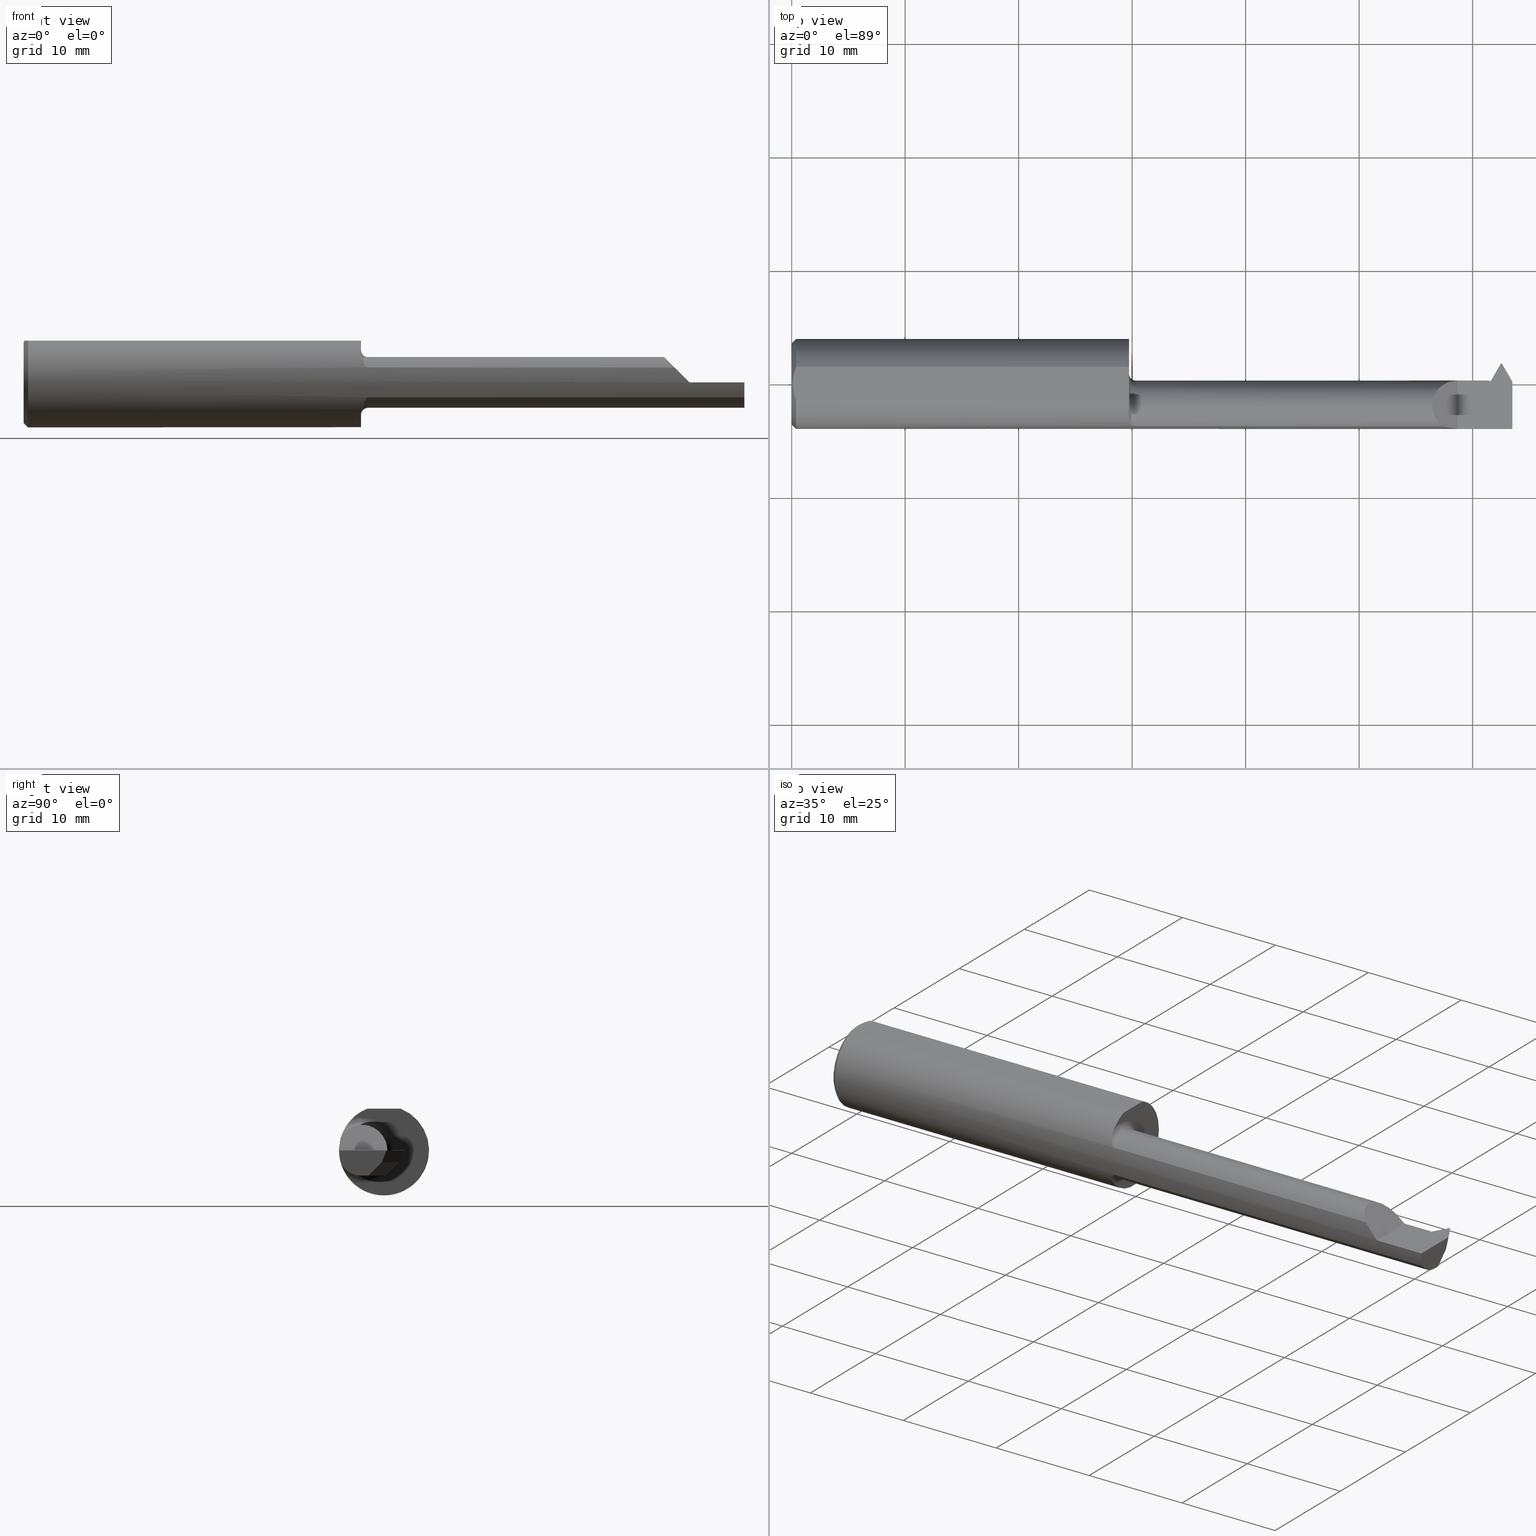
[diagram: canonical four-view strip — front | top / right | iso, engineering-drawing reading convention]
A machine part, canonical four-view strip (front | top / right | iso — engineering-drawing reading convention). The complete STEP part file that produces these views, byte-faithful:
ISO-10303-21;
HEADER;
FILE_DESCRIPTION (( 'STEP AP203' ),
    '1' );
FILE_NAME ('230298-TT2301250.STEP',
    '2025-04-22T23:18:01',
    ( '' ),
    ( '' ),
    'SwSTEP 2.0',
    'SolidWorks 2024',
    '' );
FILE_SCHEMA (( 'CONFIG_CONTROL_DESIGN' ));
ENDSEC;

DATA;
#1 =( CONVERSION_BASED_UNIT ( 'INCH', #687 ) LENGTH_UNIT ( ) NAMED_UNIT ( #109 ) );
#2 = CARTESIAN_POINT ( 'NONE',  ( 2.500000000000000000, -0.07609999999999991771, -0.08799999999999999489 ) ) ;
#3 = AXIS2_PLACEMENT_3D ( 'NONE', #340, #856, #488 ) ;
#4 = VECTOR ( 'NONE', #484, 39.37007874015748143 ) ;
#5 = ORIENTED_EDGE ( 'NONE', *, *, #567, .T. ) ;
#6 = CIRCLE ( 'NONE', #848, 0.1560999999999999888 ) ;
#7 = ORIENTED_EDGE ( 'NONE', *, *, #52, .T. ) ;
#8 = VERTEX_POINT ( 'NONE', #541 ) ;
#9 = CARTESIAN_POINT ( 'NONE',  ( 1.170000000000000151, 0.000000000000000000, 0.000000000000000000 ) ) ;
#10 = ADVANCED_BREP_SHAPE_REPRESENTATION ( '230298-TT2301250', ( #961, #721 ), #24 ) ;
#11 = CARTESIAN_POINT ( 'NONE',  ( 2.165000000000000480, 0.1749999999999999889, 0.1450999999999999512 ) ) ;
#12 = ORIENTED_EDGE ( 'NONE', *, *, #33, .T. ) ;
#13 = ORIENTED_EDGE ( 'NONE', *, *, #266, .T. ) ;
#14 = EDGE_CURVE ( 'NONE', #8, #159, #742, .T. ) ;
#15 = FACE_OUTER_BOUND ( 'NONE', #171, .T. ) ;
#16 = APPROVAL_STATUS ( 'not_yet_approved' ) ;
#17 = CARTESIAN_POINT ( 'NONE',  ( 1.179094334707839531, -0.1408376601564307051, -0.06752940149352165689 ) ) ;
#18 = VERTEX_POINT ( 'NONE', #846 ) ;
#19 = CC_DESIGN_PERSON_AND_ORGANIZATION_ASSIGNMENT ( #334, #631, ( #392 ) ) ;
#20 = LINE ( 'NONE', #307, #208 ) ;
#21 = APPROVAL_ROLE ( '' ) ;
#22 = LINE ( 'NONE', #332, #874 ) ;
#23 = VECTOR ( 'NONE', #574, 39.37007874015748854 ) ;
#24 =( GEOMETRIC_REPRESENTATION_CONTEXT ( 3 ) GLOBAL_UNCERTAINTY_ASSIGNED_CONTEXT ( ( #913 ) ) GLOBAL_UNIT_ASSIGNED_CONTEXT ( ( #1, #329, #324 ) ) REPRESENTATION_CONTEXT ( 'NONE', 'WORKASPACE' ) );
#25 = DIRECTION ( 'NONE',  ( -0.2488382054433659063, -0.6848647850166172946, -0.6848647850166247331 ) ) ;
#26 = DATE_TIME_ROLE ( 'creation_date' ) ;
#27 = CARTESIAN_POINT ( 'NONE',  ( 1.172184834623028138, -0.1292572780652835041, -0.08772123080144228480 ) ) ;
#28 = EDGE_CURVE ( 'NONE', #18, #610, #926, .T. ) ;
#29 = CARTESIAN_POINT ( 'NONE',  ( 1.172196435196732889, -0.1292912702572164008, 0.08767123446451229041 ) ) ;
#30 = DIRECTION ( 'NONE',  ( 4.327630860564885465E-15, -0.7071067811865436870, -0.7071067811865513475 ) ) ;
#31 = COORDINATED_UNIVERSAL_TIME_OFFSET ( 8, 0, .BEHIND. ) ;
#32 = CARTESIAN_POINT ( 'NONE',  ( 2.412128569999999694, 0.003495971334868634619, -0.1879385241571825405 ) ) ;
#33 = EDGE_CURVE ( 'NONE', #158, #672, #191, .T. ) ;
#34 = DIRECTION ( 'NONE',  ( -0.000000000000000000, 1.000000000000000000, -0.000000000000000000 ) ) ;
#35 = LINE ( 'NONE', #644, #747 ) ;
#36 = B_SPLINE_CURVE_WITH_KNOTS ( 'NONE', 3,
 ( #932, #559, #241, #27, #777, #615, #17, #400, #318, #936, #335, #850, #632, #257 ),
 .UNSPECIFIED., .F., .F.,
 ( 4, 2, 2, 2, 2, 2, 4 ),
 ( 0.000000000000000000, 0.0004571115948190657011, 0.0009142231896381314022, 0.001371334784457197645, 0.001599890581866728057, 0.001714168480571489576, 0.001828446379276251529 ),
 .UNSPECIFIED. ) ;
#37 = CARTESIAN_POINT ( 'NONE',  ( 2.412128569999998362, 0.06098089297201422093, -0.03000000000000036318 ) ) ;
#38 = EDGE_CURVE ( 'NONE', #609, #834, #938, .T. ) ;
#39 = AXIS2_PLACEMENT_3D ( 'NONE', #486, #113, #798 ) ;
#40 = AXIS2_PLACEMENT_3D ( 'NONE', #280, #64, #436 ) ;
#41 = SHAPE_DEFINITION_REPRESENTATION ( #287, #10 ) ;
#42 = DIRECTION ( 'NONE',  ( -1.000000000000000000, -0.000000000000000000, -0.000000000000000000 ) ) ;
#43 = ORIENTED_EDGE ( 'NONE', *, *, #247, .F. ) ;
#44 = FACE_OUTER_BOUND ( 'NONE', #211, .T. ) ;
#45 = VERTEX_POINT ( 'NONE', #946 ) ;
#46 = PERSON_AND_ORGANIZATION ( #945, #311 ) ;
#47 = DIRECTION ( 'NONE',  ( 0.000000000000000000, -1.000000000000000000, 1.665508886226709250E-16 ) ) ;
#48 = CARTESIAN_POINT ( 'NONE',  ( 0.000000000000000000, 0.000000000000000000, 0.000000000000000000 ) ) ;
#49 = EDGE_LOOP ( 'NONE', ( #685, #661, #215, #13, #881, #817 ) ) ;
#50 = FACE_OUTER_BOUND ( 'NONE', #646, .T. ) ;
#51 = AXIS2_PLACEMENT_3D ( 'NONE', #647, #110, #870 ) ;
#52 = EDGE_CURVE ( 'NONE', #234, #892, #336, .T. ) ;
#53 = DIRECTION ( 'NONE',  ( -0.000000000000000000, 1.000000000000000000, -1.665508886226709250E-16 ) ) ;
#54 = DIRECTION ( 'NONE',  ( -1.000000000000000000, -4.337237490962486732E-15, 0.000000000000000000 ) ) ;
#55 = CARTESIAN_POINT ( 'NONE',  ( 2.432412366617116461, -0.01878513696056283502, -0.06677579258062492362 ) ) ;
#56 = EDGE_CURVE ( 'NONE', #506, #326, #174, .T. ) ;
#57 = ORIENTED_EDGE ( 'NONE', *, *, #419, .T. ) ;
#58 = DIRECTION ( 'NONE',  ( -0.000000000000000000, 1.000000000000000000, -0.000000000000000000 ) ) ;
#59 = DIRECTION ( 'NONE',  ( 0.1822355254921478318, 0.000000000000000000, 0.9832549075639543945 ) ) ;
#60 = ORIENTED_EDGE ( 'NONE', *, *, #738, .F. ) ;
#61 = ORIENTED_EDGE ( 'NONE', *, *, #674, .F. ) ;
#62 = EDGE_CURVE ( 'NONE', #320, #422, #717, .T. ) ;
#63 = LINE ( 'NONE', #217, #769 ) ;
#64 = DIRECTION ( 'NONE',  ( -1.000000000000000000, -0.000000000000000000, -0.000000000000000000 ) ) ;
#65 = VECTOR ( 'NONE', #53, 39.37007874015748143 ) ;
#66 = AXIS2_PLACEMENT_3D ( 'NONE', #914, #539, #317 ) ;
#67 = ORIENTED_EDGE ( 'NONE', *, *, #910, .T. ) ;
#68 = ORIENTED_EDGE ( 'NONE', *, *, #254, .F. ) ;
#69 = ADVANCED_FACE ( 'NONE', ( #183 ), #255, .T. ) ;
#70 = CARTESIAN_POINT ( 'NONE',  ( 2.500000000000000000, -0.006579990772679033574, -0.04000000000000004247 ) ) ;
#71 = CARTESIAN_POINT ( 'NONE',  ( 2.429234505209546313, 0.002486438202738685752, -0.04000000000000004247 ) ) ;
#72 = CARTESIAN_POINT ( 'NONE',  ( 1.195000000000000062, -0.07609999999999990383, 0.000000000000000000 ) ) ;
#73 = ORIENTED_EDGE ( 'NONE', *, *, #156, .T. ) ;
#74 = ORIENTED_EDGE ( 'NONE', *, *, #808, .T. ) ;
#75 = ORIENTED_EDGE ( 'NONE', *, *, #283, .F. ) ;
#76 = CARTESIAN_POINT ( 'NONE',  ( 2.457232791724791809, 0.05098089297201464226, -0.04000000000000004247 ) ) ;
#77 = CARTESIAN_POINT ( 'NONE',  ( 1.170000000000000151, -0.07609999999999990383, 0.000000000000000000 ) ) ;
#78 = CARTESIAN_POINT ( 'NONE',  ( 2.429234505209546313, -0.03568306677792929676, -0.07816950498066803366 ) ) ;
#79 = VERTEX_POINT ( 'NONE', #787 ) ;
#80 = ORIENTED_EDGE ( 'NONE', *, *, #328, .T. ) ;
#81 = CARTESIAN_POINT ( 'NONE',  ( 1.191958798426077548, -0.1470959791559693364, 0.05225519572836446330 ) ) ;
#82 = CARTESIAN_POINT ( 'NONE',  ( 1.195000000000000062, -0.07609999999999988995, 0.1130000000000000032 ) ) ;
#83 = MECHANICAL_CONTEXT ( 'NONE', #167, 'mechanical' ) ;
#84 = CARTESIAN_POINT ( 'NONE',  ( 2.462521487620783933, 0.003433247864051238059, -0.1881108554769237440 ) ) ;
#85 = VECTOR ( 'NONE', #497, 39.37007874015748854 ) ;
#86 = EDGE_CURVE ( 'NONE', #506, #609, #888, .T. ) ;
#87 = TOROIDAL_SURFACE ( 'NONE', #640, 0.1130000000000000032, 0.02500000000000000139 ) ;
#88 = ORIENTED_EDGE ( 'NONE', *, *, #266, .F. ) ;
#89 = ORIENTED_EDGE ( 'NONE', *, *, #14, .T. ) ;
#90 = CARTESIAN_POINT ( 'NONE',  ( 1.195000000000000062, -0.07609999999999990383, 0.000000000000000000 ) ) ;
#91 = PERSON_AND_ORGANIZATION_ROLE ( 'creator' ) ;
#92 = DIRECTION ( 'NONE',  ( -0.09252987390807521084, 0.6193650116388675908, 0.7796314544655962298 ) ) ;
#93 = EDGE_CURVE ( 'NONE', #754, #320, #316, .T. ) ;
#94 = VERTEX_POINT ( 'NONE', #179 ) ;
#95 = DIRECTION ( 'NONE',  ( 1.000000000000000000, 0.000000000000000000, 0.000000000000000000 ) ) ;
#96 = APPROVAL_ROLE ( '' ) ;
#97 = CARTESIAN_POINT ( 'NONE',  ( 2.419954283310243426, 0.01190000000000008412, 0.000000000000000000 ) ) ;
#98 = ORIENTED_EDGE ( 'NONE', *, *, #920, .F. ) ;
#99 = DIRECTION ( 'NONE',  ( 0.000000000000000000, 0.000000000000000000, -1.000000000000000000 ) ) ;
#100 = EDGE_CURVE ( 'NONE', #546, #796, #462, .T. ) ;
#101 = PERSON_AND_ORGANIZATION ( #945, #311 ) ;
#102 = FACE_OUTER_BOUND ( 'NONE', #49, .T. ) ;
#103 = CARTESIAN_POINT ( 'NONE',  ( 2.434153716850806504, -0.03491348145713581153, -0.08061904056241102345 ) ) ;
#104 = CIRCLE ( 'NONE', #51, 0.1130000000000000032 ) ;
#105 = FACE_OUTER_BOUND ( 'NONE', #216, .T. ) ;
#106 = CARTESIAN_POINT ( 'NONE',  ( 2.310000000000000053, 0.000000000000000000, 0.000000000000000000 ) ) ;
#107 = CARTESIAN_POINT ( 'NONE',  ( 2.417409961610213376, 0.01190000000000008586, -0.01372793142950701900 ) ) ;
#108 = PLANE ( 'NONE',  #194 ) ;
#109 = DIMENSIONAL_EXPONENTS ( 1.000000000000000000, 0.000000000000000000, 0.000000000000000000, 0.000000000000000000, 0.000000000000000000, 0.000000000000000000, 0.000000000000000000 ) ;
#110 = DIRECTION ( 'NONE',  ( -1.000000000000000000, -0.000000000000000000, -0.000000000000000000 ) ) ;
#111 = EDGE_CURVE ( 'NONE', #965, #304, #878, .T. ) ;
#112 = DIRECTION ( 'NONE',  ( 1.000000000000000000, 0.000000000000000000, 0.000000000000000000 ) ) ;
#113 = DIRECTION ( 'NONE',  ( -1.000000000000000000, -0.000000000000000000, -0.000000000000000000 ) ) ;
#114 = DIRECTION ( 'NONE',  ( 0.7071067811865483499, 0.000000000000000000, -0.7071067811865466846 ) ) ;
#115 = VERTEX_POINT ( 'NONE', #795 ) ;
#116 = CIRCLE ( 'NONE', #330, 0.02500000000000000486 ) ;
#117 = LOCAL_TIME ( 16, 18, 1.000000000000000000, #854 ) ;
#118 = CARTESIAN_POINT ( 'NONE',  ( 2.222100000000000186, -0.02459722810174531579, 0.08800000000000000877 ) ) ;
#119 = FACE_OUTER_BOUND ( 'NONE', #237, .T. ) ;
#120 = CARTESIAN_POINT ( 'NONE',  ( 2.222100000000000186, -0.07609999999999990383, 0.08799999999999999489 ) ) ;
#121 = EDGE_LOOP ( 'NONE', ( #12, #974, #366, #877 ) ) ;
#122 = EDGE_CURVE ( 'NONE', #242, #393, #714, .T. ) ;
#123 = FACE_OUTER_BOUND ( 'NONE', #221, .T. ) ;
#124 = FACE_OUTER_BOUND ( 'NONE', #537, .T. ) ;
#125 = ORIENTED_EDGE ( 'NONE', *, *, #376, .F. ) ;
#126 = VECTOR ( 'NONE', #186, 39.37007874015748143 ) ;
#127 = AXIS2_PLACEMENT_3D ( 'NONE', #729, #573, #47 ) ;
#128 = CARTESIAN_POINT ( 'NONE',  ( 1.170000000000000151, -0.1142537450722733300, 0.1063639588251582974 ) ) ;
#129 = ADVANCED_FACE ( 'NONE', ( #262 ), #163, .T. ) ;
#130 = PLANE ( 'NONE',  #749 ) ;
#131 = LINE ( 'NONE', #804, #85 ) ;
#132 = ORIENTED_EDGE ( 'NONE', *, *, #540, .F. ) ;
#133 = LINE ( 'NONE', #598, #543 ) ;
#134 = ADVANCED_FACE ( 'NONE', ( #119 ), #789, .T. ) ;
#135 = ORIENTED_EDGE ( 'NONE', *, *, #863, .F. ) ;
#136 = EDGE_LOOP ( 'NONE', ( #901, #132, #293, #367, #74 ) ) ;
#137 = CARTESIAN_POINT ( 'NONE',  ( 2.437057709344923939, -2.395127504580135902, 0.3287498326531673731 ) ) ;
#138 = DIRECTION ( 'NONE',  ( 1.000000000000000000, 0.000000000000000000, 0.000000000000000000 ) ) ;
#139 = ORIENTED_EDGE ( 'NONE', *, *, #214, .F. ) ;
#140 = ORIENTED_EDGE ( 'NONE', *, *, #86, .F. ) ;
#141 = EDGE_CURVE ( 'NONE', #965, #362, #933, .T. ) ;
#142 = CARTESIAN_POINT ( 'NONE',  ( 2.310000000000000053, 0.01190000000000008412, -3.979970649922725226E-17 ) ) ;
#143 = DIRECTION ( 'NONE',  ( 1.000000000000000000, 0.000000000000000000, 0.000000000000000000 ) ) ;
#144 = CONICAL_SURFACE ( 'NONE', #639, 0.1560999999999999888, 0.7853981633974471688 ) ;
#145 = LOCAL_TIME ( 16, 18, 1.000000000000000000, #924 ) ;
#146 = EDGE_LOOP ( 'NONE', ( #538, #517, #230, #442 ) ) ;
#147 = EDGE_LOOP ( 'NONE', ( #585, #299, #513, #895 ) ) ;
#148 = ORIENTED_EDGE ( 'NONE', *, *, #674, .T. ) ;
#149 = DIRECTION ( 'NONE',  ( 0.000000000000000000, 0.000000000000000000, -1.000000000000000000 ) ) ;
#150 = CARTESIAN_POINT ( 'NONE',  ( 0.01499999999999970281, 0.000000000000000000, -0.1560999999999999888 ) ) ;
#151 = CARTESIAN_POINT ( 'NONE',  ( 0.000000000000000000, 0.000000000000000000, -0.1411000000000003085 ) ) ;
#152 = ORIENTED_EDGE ( 'NONE', *, *, #56, .F. ) ;
#153 = ORIENTED_EDGE ( 'NONE', *, *, #170, .F. ) ;
#154 = CARTESIAN_POINT ( 'NONE',  ( 0.003999999999999637526, 1.884449684559922719E-17, 0.1450999999999999512 ) ) ;
#155 = FACE_OUTER_BOUND ( 'NONE', #501, .T. ) ;
#156 = EDGE_CURVE ( 'NONE', #380, #591, #22, .T. ) ;
#157 = CARTESIAN_POINT ( 'NONE',  ( 2.429234505209546313, 0.002486438202738685752, -0.04000000000000004247 ) ) ;
#158 = VERTEX_POINT ( 'NONE', #633 ) ;
#159 = VERTEX_POINT ( 'NONE', #571 ) ;
#160 = CARTESIAN_POINT ( 'NONE',  ( 1.193446355305318063, -0.1472695137976347268, 0.05175809410911755976 ) ) ;
#161 = DIRECTION ( 'NONE',  ( 1.000000000000000000, 0.000000000000000000, 0.000000000000000000 ) ) ;
#162 = DATE_AND_TIME ( #465, #572 ) ;
#163 = CONICAL_SURFACE ( 'NONE', #709, 0.1560999999999999888, 0.7853981633974471688 ) ;
#164 = EDGE_CURVE ( 'NONE', #911, #8, #662, .T. ) ;
#165 = AXIS2_PLACEMENT_3D ( 'NONE', #887, #375, #212 ) ;
#166 = VECTOR ( 'NONE', #889, 39.37007874015748143 ) ;
#167 = APPLICATION_CONTEXT ( 'configuration controlled 3d designs of mechanical parts and assemblies' ) ;
#168 = ORIENTED_EDGE ( 'NONE', *, *, #653, .T. ) ;
#169 = DIRECTION ( 'NONE',  ( 1.000000000000000000, 0.000000000000000000, 0.000000000000000000 ) ) ;
#170 = EDGE_CURVE ( 'NONE', #518, #242, #916, .T. ) ;
#171 = EDGE_LOOP ( 'NONE', ( #536, #140, #373, #825, #222, #352, #677, #473, #885, #229, #616, #596, #187, #459 ) ) ;
#172 = CARTESIAN_POINT ( 'NONE',  ( 2.310000000000000053, 0.01189994318180000350, 9.999999999973052634E-05 ) ) ;
#173 = CALENDAR_DATE ( 2025, 22, 4 ) ;
#174 = LINE ( 'NONE', #555, #490 ) ;
#175 = CARTESIAN_POINT ( 'NONE',  ( 2.310000000000000053, 0.1749999999999999889, 9.999999999973052634E-05 ) ) ;
#176 = APPROVAL_STATUS ( 'not_yet_approved' ) ;
#177 = DIRECTION ( 'NONE',  ( -0.4999999999999995559, -0.8660254037844388186, 1.431454160717134969E-16 ) ) ;
#178 = AXIS2_PLACEMENT_3D ( 'NONE', #686, #526, #592 ) ;
#179 = CARTESIAN_POINT ( 'NONE',  ( 2.258341905890882462, -0.1472695137976346991, 0.05175809410911749731 ) ) ;
#180 = VECTOR ( 'NONE', #504, 39.37007874015748143 ) ;
#181 = CARTESIAN_POINT ( 'NONE',  ( 2.429166679617513314, 0.002603915574193653177, -0.03936614882472369570 ) ) ;
#182 = CARTESIAN_POINT ( 'NONE',  ( 2.461477191406484355, 0.003557394982492709766, -0.1877697640723154371 ) ) ;
#183 = FACE_OUTER_BOUND ( 'NONE', #401, .T. ) ;
#184 = DATE_AND_TIME ( #801, #358 ) ;
#185 = CARTESIAN_POINT ( 'NONE',  ( 1.170000000000000151, -0.07609999999999990383, 0.000000000000000000 ) ) ;
#186 = DIRECTION ( 'NONE',  ( -1.000000000000000000, -6.819236653112416544E-15, -6.819236653112490697E-15 ) ) ;
#187 = ORIENTED_EDGE ( 'NONE', *, *, #100, .F. ) ;
#188 = DATE_TIME_ROLE ( 'classification_date' ) ;
#189 = CARTESIAN_POINT ( 'NONE',  ( 0.01499999999999970281, 0.000000000000000000, 0.000000000000000000 ) ) ;
#190 = APPROVAL ( #198, 'UNSPECIFIED' ) ;
#191 = LINE ( 'NONE', #792, #288 ) ;
#192 = EDGE_LOOP ( 'NONE', ( #569, #530, #7, #755, #840 ) ) ;
#193 = CIRCLE ( 'NONE', #39, 0.1130000000000000032 ) ;
#194 = AXIS2_PLACEMENT_3D ( 'NONE', #483, #898, #511 ) ;
#195 = LINE ( 'NONE', #384, #65 ) ;
#196 = ORIENTED_EDGE ( 'NONE', *, *, #93, .F. ) ;
#197 = EDGE_CURVE ( 'NONE', #796, #115, #580, .T. ) ;
#198 = APPROVAL_STATUS ( 'not_yet_approved' ) ;
#199 = DIRECTION ( 'NONE',  ( 0.000000000000000000, -0.3475680726108413277, -0.9376547525083980261 ) ) ;
#200 = DIRECTION ( 'NONE',  ( 0.000000000000000000, 0.000000000000000000, -1.000000000000000000 ) ) ;
#201 = APPROVAL ( #16, 'UNSPECIFIED' ) ;
#202 = CARTESIAN_POINT ( 'NONE',  ( 2.310000000000000053, 0.1749999999999999889, -3.979970649922725226E-17 ) ) ;
#203 = CYLINDRICAL_SURFACE ( 'NONE', #527, 0.08799999999999999489 ) ;
#204 = CARTESIAN_POINT ( 'NONE',  ( 2.429166679617513314, 0.002603915574193653177, -0.03936614882472369570 ) ) ;
#205 = ORIENTED_EDGE ( 'NONE', *, *, #808, .F. ) ;
#206 = AXIS2_PLACEMENT_3D ( 'NONE', #185, #42, #427 ) ;
#207 = DIRECTION ( 'NONE',  ( -1.000000000000000000, -0.000000000000000000, -0.000000000000000000 ) ) ;
#208 = VECTOR ( 'NONE', #395, 39.37007874015748854 ) ;
#209 = ADVANCED_FACE ( 'NONE', ( #839 ), #752, .F. ) ;
#210 = PLANE ( 'NONE',  #587 ) ;
#211 = EDGE_LOOP ( 'NONE', ( #678, #148, #590, #983 ) ) ;
#212 = DIRECTION ( 'NONE',  ( 0.000000000000000000, 0.000000000000000000, 1.000000000000000000 ) ) ;
#213 = PLANE ( 'NONE',  #734 ) ;
#214 = EDGE_CURVE ( 'NONE', #45, #672, #351, .T. ) ;
#215 = ORIENTED_EDGE ( 'NONE', *, *, #523, .T. ) ;
#216 = EDGE_LOOP ( 'NONE', ( #68, #909, #305, #250 ) ) ;
#217 = CARTESIAN_POINT ( 'NONE',  ( 2.500000000000000000, -0.07609999999999991771, -0.08799999999999999489 ) ) ;
#218 = DIRECTION ( 'NONE',  ( 0.9945105694338490787, 0.01906842673932168317, 0.1028840239592550276 ) ) ;
#219 = PRODUCT_RELATED_PRODUCT_CATEGORY ( 'detail', '', ( #669 ) ) ;
#220 = ORIENTED_EDGE ( 'NONE', *, *, #354, .F. ) ;
#221 = EDGE_LOOP ( 'NONE', ( #739, #443, #428, #448 ) ) ;
#222 = ORIENTED_EDGE ( 'NONE', *, *, #738, .T. ) ;
#223 = CARTESIAN_POINT ( 'NONE',  ( 1.170000000000000151, -0.07609999999999990383, -0.1130000000000000032 ) ) ;
#224 = VECTOR ( 'NONE', #872, 39.37007874015748143 ) ;
#225 = DIRECTION ( 'NONE',  ( 1.000000000000000000, -0.000000000000000000, -0.000000000000000000 ) ) ;
#226 = LINE ( 'NONE', #529, #810 ) ;
#227 = VECTOR ( 'NONE', #952, 39.37007874015748143 ) ;
#228 = CC_DESIGN_APPROVAL ( #314, ( #392 ) ) ;
#229 = ORIENTED_EDGE ( 'NONE', *, *, #886, .T. ) ;
#230 = ORIENTED_EDGE ( 'NONE', *, *, #487, .T. ) ;
#231 = ORIENTED_EDGE ( 'NONE', *, *, #397, .T. ) ;
#232 = ADVANCED_FACE ( 'NONE', ( #124 ), #507, .F. ) ;
#233 = CARTESIAN_POINT ( 'NONE',  ( 0.01158831187866349310, 0.04830813087846574927, 0.1450999999999999235 ) ) ;
#234 = VERTEX_POINT ( 'NONE', #151 ) ;
#235 = EDGE_LOOP ( 'NONE', ( #454, #532, #125, #566, #841 ) ) ;
#236 = APPLICATION_CONTEXT ( 'configuration controlled 3d designs of mechanical parts and assemblies' ) ;
#237 = EDGE_LOOP ( 'NONE', ( #418, #743, #726, #152, #683, #5 ) ) ;
#238 = EDGE_CURVE ( 'NONE', #623, #813, #480, .T. ) ;
#239 = CARTESIAN_POINT ( 'NONE',  ( 2.258341905890882462, -0.1472695137976346991, 0.05175809410911749731 ) ) ;
#240 = PERSON_AND_ORGANIZATION ( #945, #311 ) ;
#241 = CARTESIAN_POINT ( 'NONE',  ( 1.170457377058164328, -0.1222208176751872349, -0.09728581599069097141 ) ) ;
#242 = VERTEX_POINT ( 'NONE', #421 ) ;
#243 =( BOUNDED_CURVE ( )  B_SPLINE_CURVE ( 3, ( #120, #281, #730, #310 ),
 .UNSPECIFIED., .F., .T. ) 
 B_SPLINE_CURVE_WITH_KNOTS ( ( 4, 4 ),
 ( 0.000000000000000000, 0.9420143062005867929 ),
 .UNSPECIFIED. ) 
 CURVE ( )  GEOMETRIC_REPRESENTATION_ITEM ( )  RATIONAL_B_SPLINE_CURVE ( ( 1.000000000000000000, 0.9274078068410991360, 0.9274078068410991360, 1.000000000000000000 ) ) 
 REPRESENTATION_ITEM ( '' )  );
#244 = CARTESIAN_POINT ( 'NONE',  ( 2.500000000000000000, -0.006579990772679033574, -0.04000000000000004247 ) ) ;
#245 = CALENDAR_DATE ( 2025, 22, 4 ) ;
#246 = DIRECTION ( 'NONE',  ( 0.000000000000000000, 0.000000000000000000, 1.000000000000000000 ) ) ;
#247 = EDGE_CURVE ( 'NONE', #965, #79, #131, .T. ) ;
#248 = VECTOR ( 'NONE', #451, 39.37007874015748854 ) ;
#249 = VECTOR ( 'NONE', #25, 39.37007874015748854 ) ;
#250 = ORIENTED_EDGE ( 'NONE', *, *, #412, .T. ) ;
#251 = CARTESIAN_POINT ( 'NONE',  ( 2.500000000000000000, 0.000000000000000000, 0.000000000000000000 ) ) ;
#252 = PERSON_AND_ORGANIZATION_ROLE ( 'design_owner' ) ;
#253 = CARTESIAN_POINT ( 'NONE',  ( 0.000000000000000000, 0.1749999999999999889, 0.1450999999999999512 ) ) ;
#254 = EDGE_CURVE ( 'NONE', #951, #94, #243, .T. ) ;
#255 = PLANE ( 'NONE',  #782 ) ;
#256 = LINE ( 'NONE', #939, #656 ) ;
#257 = CARTESIAN_POINT ( 'NONE',  ( 1.195000000000000062, -0.1472695137976346991, -0.05175809410911754588 ) ) ;
#258 = CARTESIAN_POINT ( 'NONE',  ( 2.500000000000000000, 0.000000000000000000, 0.000000000000000000 ) ) ;
#259 = CARTESIAN_POINT ( 'NONE',  ( 1.195000000000000062, -0.07609999999999990383, 0.000000000000000000 ) ) ;
#260 = DIRECTION ( 'NONE',  ( -0.003639200789080938164, -0.3420178784979836517, -0.9396863982230216905 ) ) ;
#261 = AXIS2_PLACEMENT_3D ( 'NONE', #137, #831, #819 ) ;
#262 = FACE_OUTER_BOUND ( 'NONE', #286, .T. ) ;
#263 = ADVANCED_FACE ( 'NONE', ( #44 ), #826, .F. ) ;
#264 = LINE ( 'NONE', #420, #479 ) ;
#265 = DIRECTION ( 'NONE',  ( 1.000000000000000000, 0.000000000000000000, 0.000000000000000000 ) ) ;
#266 = EDGE_CURVE ( 'NONE', #818, #522, #682, .T. ) ;
#267 = LINE ( 'NONE', #864, #570 ) ;
#268 = CARTESIAN_POINT ( 'NONE',  ( 1.170000000000000151, -0.1184005327550379932, 0.1019095738247443456 ) ) ;
#269 = ORIENTED_EDGE ( 'NONE', *, *, #122, .F. ) ;
#270 = PLANE ( 'NONE',  #308 ) ;
#271 =( BOUNDED_CURVE ( )  B_SPLINE_CURVE ( 3, ( #564, #867, #118, #359 ),
 .UNSPECIFIED., .F., .T. ) 
 B_SPLINE_CURVE_WITH_KNOTS ( ( 4, 4 ),
 ( 4.713525344265619310, 6.283185307179586232 ),
 .UNSPECIFIED. ) 
 CURVE ( )  GEOMETRIC_REPRESENTATION_ITEM ( )  RATIONAL_B_SPLINE_CURVE ( ( 1.000000000000000000, 0.8050056215533928361, 0.8050056215533928361, 1.000000000000000000 ) ) 
 REPRESENTATION_ITEM ( '' )  );
#272 = EDGE_CURVE ( 'NONE', #312, #158, #195, .T. ) ;
#273 = CARTESIAN_POINT ( 'NONE',  ( 0.003999999999999592423, 0.009855731042683129120, 0.1450999999999999790 ) ) ;
#274 = ORIENTED_EDGE ( 'NONE', *, *, #437, .T. ) ;
#275 = VECTOR ( 'NONE', #725, 39.37007874015748143 ) ;
#276 = AXIS2_PLACEMENT_3D ( 'NONE', #771, #95, #474 ) ;
#277 = FACE_OUTER_BOUND ( 'NONE', #192, .T. ) ;
#278 = DIRECTION ( 'NONE',  ( 1.000000000000000000, 0.000000000000000000, 0.000000000000000000 ) ) ;
#279 = DIRECTION ( 'NONE',  ( 0.000000000000000000, 0.000000000000000000, -1.000000000000000000 ) ) ;
#280 = CARTESIAN_POINT ( 'NONE',  ( 2.429234505209546313, -0.07609999999999990383, 0.000000000000000000 ) ) ;
#281 = CARTESIAN_POINT ( 'NONE',  ( 2.222100000000000186, -0.1048058126387024641, 0.08800000000000002265 ) ) ;
#282 = ORIENTED_EDGE ( 'NONE', *, *, #563, .T. ) ;
#283 = EDGE_CURVE ( 'NONE', #422, #818, #360, .T. ) ;
#284 = CARTESIAN_POINT ( 'NONE',  ( 2.310000000000000053, 0.1749999999999999889, -3.979970649922725226E-17 ) ) ;
#285 = FACE_OUTER_BOUND ( 'NONE', #379, .T. ) ;
#286 = EDGE_LOOP ( 'NONE', ( #978, #836, #960, #896, #821 ) ) ;
#287 = PRODUCT_DEFINITION_SHAPE ( 'NONE', 'NONE',  #837 ) ;
#288 = VECTOR ( 'NONE', #713, 39.37007874015748854 ) ;
#289 = VECTOR ( 'NONE', #509, 39.37007874015748854 ) ;
#290 = EDGE_CURVE ( 'NONE', #518, #684, #954, .T. ) ;
#291 = AXIS2_PLACEMENT_3D ( 'NONE', #322, #470, #934 ) ;
#292 = CARTESIAN_POINT ( 'NONE',  ( 1.170000000000000151, 0.2119000000000000883, 0.000000000000000000 ) ) ;
#293 = ORIENTED_EDGE ( 'NONE', *, *, #567, .F. ) ;
#294 = ORIENTED_EDGE ( 'NONE', *, *, #800, .T. ) ;
#295 = PLANE ( 'NONE',  #605 ) ;
#296 = LINE ( 'NONE', #664, #180 ) ;
#297 = ORIENTED_EDGE ( 'NONE', *, *, #238, .F. ) ;
#298 = ORIENTED_EDGE ( 'NONE', *, *, #773, .T. ) ;
#299 = ORIENTED_EDGE ( 'NONE', *, *, #550, .T. ) ;
#300 = CARTESIAN_POINT ( 'NONE',  ( 1.195000000000000062, -0.07609999999999990383, -0.1130000000000000032 ) ) ;
#301 = CARTESIAN_POINT ( 'NONE',  ( 1.195000000000000062, -0.1472695137976346991, -0.05175809410911754588 ) ) ;
#302 = CARTESIAN_POINT ( 'NONE',  ( 2.424954283310243763, 0.009900000000000085815, 0.000000000000000000 ) ) ;
#303 = EDGE_CURVE ( 'NONE', #672, #518, #226, .T. ) ;
#304 = VERTEX_POINT ( 'NONE', #833 ) ;
#305 = ORIENTED_EDGE ( 'NONE', *, *, #766, .T. ) ;
#306 = VERTEX_POINT ( 'NONE', #78 ) ;
#307 = CARTESIAN_POINT ( 'NONE',  ( 2.419954283310243426, 0.009900000000000085815, 0.000000000000000000 ) ) ;
#308 = AXIS2_PLACEMENT_3D ( 'NONE', #347, #949, #956 ) ;
#309 = PERSON_AND_ORGANIZATION ( #945, #311 ) ;
#310 = CARTESIAN_POINT ( 'NONE',  ( 2.258341905890882462, -0.1472695137976346991, 0.05175809410911749731 ) ) ;
#311 = ORGANIZATION ( 'UNSPECIFIED', 'UNSPECIFIED', '' ) ;
#312 = VERTEX_POINT ( 'NONE', #2 ) ;
#313 = ORIENTED_EDGE ( 'NONE', *, *, #948, .F. ) ;
#314 = APPROVAL ( #176, 'UNSPECIFIED' ) ;
#315 = CARTESIAN_POINT ( 'NONE',  ( 0.005011318927232567486, -0.01959047621504285061, 0.1450999999999999512 ) ) ;
#316 =( BOUNDED_CURVE ( )  B_SPLINE_CURVE ( 3, ( #485, #348, #107, #343 ),
 .UNSPECIFIED., .F., .F. ) 
 B_SPLINE_CURVE_WITH_KNOTS ( ( 4, 4 ),
 ( 1.107004480862656681, 1.570796326794896780 ),
 .UNSPECIFIED. ) 
 CURVE ( )  GEOMETRIC_REPRESENTATION_ITEM ( )  RATIONAL_B_SPLINE_CURVE ( ( 1.000000000000000000, 0.9821549450057673880, 0.9821549450057673880, 1.000000000000000000 ) ) 
 REPRESENTATION_ITEM ( '' )  );
#317 = DIRECTION ( 'NONE',  ( 0.000000000000000000, 0.000000000000000000, 1.000000000000000000 ) ) ;
#318 = CARTESIAN_POINT ( 'NONE',  ( 1.185113571315069336, -0.1450112207500813266, -0.05782715517876008821 ) ) ;
#319 = ORIENTED_EDGE ( 'NONE', *, *, #716, .F. ) ;
#320 = VERTEX_POINT ( 'NONE', #97 ) ;
#321 = CC_DESIGN_PERSON_AND_ORGANIZATION_ASSIGNMENT ( #727, #643, ( #786 ) ) ;
#322 = CARTESIAN_POINT ( 'NONE',  ( 1.170000000000000151, -0.07609999999999990383, 0.000000000000000000 ) ) ;
#323 = ADVANCED_FACE ( 'NONE', ( #102 ), #404, .F. ) ;
#324 =( NAMED_UNIT ( * ) SI_UNIT ( $, .STERADIAN. ) SOLID_ANGLE_UNIT ( ) );
#325 = FACE_OUTER_BOUND ( 'NONE', #822, .T. ) ;
#326 = VERTEX_POINT ( 'NONE', #478 ) ;
#327 = DIRECTION ( 'NONE',  ( 1.000000000000000000, 0.000000000000000000, 0.000000000000000000 ) ) ;
#328 = EDGE_CURVE ( 'NONE', #623, #380, #472, .T. ) ;
#329 =( NAMED_UNIT ( * ) PLANE_ANGLE_UNIT ( ) SI_UNIT ( $, .RADIAN. ) );
#330 = AXIS2_PLACEMENT_3D ( 'NONE', #300, #823, #149 ) ;
#331 = AXIS2_PLACEMENT_3D ( 'NONE', #259, #557, #862 ) ;
#332 = CARTESIAN_POINT ( 'NONE',  ( 2.429234505209546313, 0.002486438202738685752, -0.04000000000000004247 ) ) ;
#333 = CARTESIAN_POINT ( 'NONE',  ( 2.455049885531356946, 0.04497299085660372286, -0.04600790211541101737 ) ) ;
#334 = PERSON_AND_ORGANIZATION ( #945, #311 ) ;
#335 = CARTESIAN_POINT ( 'NONE',  ( 1.189351722746850415, -0.1465615025502166879, -0.05373597933534095955 ) ) ;
#336 = LINE ( 'NONE', #482, #927 ) ;
#337 = CARTESIAN_POINT ( 'NONE',  ( 0.000000000000000000, 1.819825143532968629E-17, 0.1411000000000003085 ) ) ;
#338 = DIRECTION ( 'NONE',  ( 4.075670064853455882E-15, -0.9396926207859127578, 0.3420201433256568335 ) ) ;
#339 = EDGE_CURVE ( 'NONE', #546, #834, #36, .T. ) ;
#340 = CARTESIAN_POINT ( 'NONE',  ( 1.170000000000000151, 0.000000000000000000, 0.000000000000000000 ) ) ;
#341 = LINE ( 'NONE', #414, #671 ) ;
#342 = VECTOR ( 'NONE', #177, 39.37007874015748854 ) ;
#343 = CARTESIAN_POINT ( 'NONE',  ( 2.419954283310243426, 0.01190000000000008412, 0.000000000000000000 ) ) ;
#344 = AXIS2_PLACEMENT_3D ( 'NONE', #599, #745, #809 ) ;
#345 = ORIENTED_EDGE ( 'NONE', *, *, #100, .T. ) ;
#346 = ADVANCED_FACE ( 'NONE', ( #325 ), #466, .F. ) ;
#347 = CARTESIAN_POINT ( 'NONE',  ( 2.310000000000000053, 0.1749999999999999889, -3.979970649922725226E-17 ) ) ;
#348 = CARTESIAN_POINT ( 'NONE',  ( 2.414933745251173214, 0.008745004116347428885, -0.02708839932203915488 ) ) ;
#349 = EDGE_CURVE ( 'NONE', #746, #617, #847, .T. ) ;
#350 = CARTESIAN_POINT ( 'NONE',  ( 2.419954283310243426, 0.009900000000000085815, 0.000000000000000000 ) ) ;
#351 = LINE ( 'NONE', #812, #942 ) ;
#352 = ORIENTED_EDGE ( 'NONE', *, *, #412, .F. ) ;
#353 = DIRECTION ( 'NONE',  ( -0.1046361662350171057, 0.1812351562282725759, 0.9778573980200545579 ) ) ;
#354 = EDGE_CURVE ( 'NONE', #45, #79, #855, .T. ) ;
#355 = DIRECTION ( 'NONE',  ( 1.000000000000000000, -0.000000000000000000, -0.000000000000000000 ) ) ;
#356 = AXIS2_PLACEMENT_3D ( 'NONE', #258, #493, #722 ) ;
#357 = CIRCLE ( 'NONE', #206, 0.1130000000000000032 ) ;
#358 = LOCAL_TIME ( 16, 18, 1.000000000000000000, #31 ) ;
#359 = CARTESIAN_POINT ( 'NONE',  ( 2.222100000000000186, -0.07609999999999990383, 0.08799999999999999489 ) ) ;
#360 = LINE ( 'NONE', #302, #957 ) ;
#361 = CARTESIAN_POINT ( 'NONE',  ( 0.01499999999999970281, 1.911673653469018068E-17, 0.1560999999999999888 ) ) ;
#362 = VERTEX_POINT ( 'NONE', #544 ) ;
#363 = ADVANCED_FACE ( 'NONE', ( #408 ), #765, .F. ) ;
#364 = DIRECTION ( 'NONE',  ( -1.000000000000000000, -0.000000000000000000, -0.000000000000000000 ) ) ;
#365 = CARTESIAN_POINT ( 'NONE',  ( 0.01499999999999970281, 0.05756040305626781983, 0.1450999999999999512 ) ) ;
#366 = ORIENTED_EDGE ( 'NONE', *, *, #290, .T. ) ;
#367 = ORIENTED_EDGE ( 'NONE', *, *, #38, .T. ) ;
#368 = CIRCLE ( 'NONE', #415, 0.08799999999999999489 ) ;
#369 = FACE_OUTER_BOUND ( 'NONE', #704, .T. ) ;
#370 = APPROVAL_PERSON_ORGANIZATION ( #46, #190, #947 ) ;
#371 = CARTESIAN_POINT ( 'NONE',  ( 2.435706988345931467, -0.07609999999999991771, -0.08799999999999999489 ) ) ;
#372 = ORIENTED_EDGE ( 'NONE', *, *, #788, .F. ) ;
#373 = ORIENTED_EDGE ( 'NONE', *, *, #619, .T. ) ;
#374 =( BOUNDED_CURVE ( )  B_SPLINE_CURVE ( 3, ( #981, #820, #520, #55 ),
 .UNSPECIFIED., .F., .F. ) 
 B_SPLINE_CURVE_WITH_KNOTS ( ( 4, 4 ),
 ( 2.833382725121767365, 3.065497789749004109 ),
 .UNSPECIFIED. ) 
 CURVE ( )  GEOMETRIC_REPRESENTATION_ITEM ( )  RATIONAL_B_SPLINE_CURVE ( ( 1.000000000000000000, 0.9955152536748566039, 0.9955152536748566039, 1.000000000000000000 ) ) 
 REPRESENTATION_ITEM ( '' )  );
#375 = DIRECTION ( 'NONE',  ( -1.000000000000000000, -0.000000000000000000, -0.000000000000000000 ) ) ;
#376 = EDGE_CURVE ( 'NONE', #760, #242, #940, .T. ) ;
#377 = DIRECTION ( 'NONE',  ( -0.9832549075639545055, 0.000000000000000000, 0.1822355254921478596 ) ) ;
#378 = DIRECTION ( 'NONE',  ( 1.000000000000000000, 0.000000000000000000, 0.000000000000000000 ) ) ;
#379 = EDGE_LOOP ( 'NONE', ( #852, #761, #907, #512, #434, #642, #955, #196, #670, #297, #282, #984, #387 ) ) ;
#380 = VERTEX_POINT ( 'NONE', #157 ) ;
#381 = CARTESIAN_POINT ( 'NONE',  ( 0.003999999999999590689, -0.009851916903761231276, 0.1450999999999999235 ) ) ;
#382 = CARTESIAN_POINT ( 'NONE',  ( 2.429320997292268913, 0.001907488210050582332, -0.04072875867441653336 ) ) ;
#383 = DIRECTION ( 'NONE',  ( 0.000000000000000000, -0.7071067811865473507, -0.7071067811865475727 ) ) ;
#384 = CARTESIAN_POINT ( 'NONE',  ( 2.500000000000000000, 0.1289310280731522929, -0.08800000000000002265 ) ) ;
#385 = ADVANCED_FACE ( 'NONE', ( #457 ), #391, .F. ) ;
#386 = EDGE_LOOP ( 'NONE', ( #294, #828, #524, #98, #869, #900, #80, #73 ) ) ;
#387 = ORIENTED_EDGE ( 'NONE', *, *, #920, .T. ) ;
#388 = CARTESIAN_POINT ( 'NONE',  ( 1.189346387196744459, -0.1465602152313723316, 0.05373951875293322272 ) ) ;
#389 = CARTESIAN_POINT ( 'NONE',  ( 2.463249999999999940, 0.07190000000000019986, 0.000000000000000000 ) ) ;
#390 = VECTOR ( 'NONE', #58, 39.37007874015748143 ) ;
#391 = PLANE ( 'NONE',  #625 ) ;
#392 = PRODUCT_DEFINITION_FORMATION_WITH_SPECIFIED_SOURCE ( 'ANY', '', #669, .NOT_KNOWN. ) ;
#393 = VERTEX_POINT ( 'NONE', #496 ) ;
#394 = CARTESIAN_POINT ( 'NONE',  ( 1.179076693190785230, -0.1408182624999438359, 0.06756946090661447579 ) ) ;
#395 = DIRECTION ( 'NONE',  ( 0.1792828666815822203, 0.1792828666815822203, 0.9673237862416430577 ) ) ;
#396 = ORIENTED_EDGE ( 'NONE', *, *, #540, .T. ) ;
#397 = EDGE_CURVE ( 'NONE', #618, #546, #357, .T. ) ;
#398 = CARTESIAN_POINT ( 'NONE',  ( 0.01499999999999970281, 0.000000000000000000, 0.000000000000000000 ) ) ;
#399 = DIRECTION ( 'NONE',  ( -0.5000000000000009992, 0.8660254037844380415, 0.000000000000000000 ) ) ;
#400 = CARTESIAN_POINT ( 'NONE',  ( 1.183463538880900723, -0.1440383527506708394, -0.06022646497160677459 ) ) ;
#401 = EDGE_LOOP ( 'NONE', ( #67, #313 ) ) ;
#402 = CARTESIAN_POINT ( 'NONE',  ( 1.170000000000000151, 0.05756040305626781289, 0.1450999999999999512 ) ) ;
#403 = DIRECTION ( 'NONE',  ( 0.7745966692414827381, 0.4472135954999587604, -0.4472135954999585383 ) ) ;
#404 = PLANE ( 'NONE',  #784 ) ;
#405 = VECTOR ( 'NONE', #982, 39.37007874015748854 ) ;
#406 = DIRECTION ( 'NONE',  ( -1.000000000000000000, -0.000000000000000000, -0.000000000000000000 ) ) ;
#407 = DIRECTION ( 'NONE',  ( -1.000000000000000000, -0.000000000000000000, -0.000000000000000000 ) ) ;
#408 = FACE_OUTER_BOUND ( 'NONE', #146, .T. ) ;
#409 = ADVANCED_FACE ( 'NONE', ( #50 ), #944, .F. ) ;
#410 = CARTESIAN_POINT ( 'NONE',  ( 1.796000000000000263, -0.1472695137976346991, -0.05175809410911754588 ) ) ;
#411 = PLANE ( 'NONE',  #560 ) ;
#412 = EDGE_CURVE ( 'NONE', #18, #94, #264, .T. ) ;
#413 = CARTESIAN_POINT ( 'NONE',  ( 1.170000000000000151, -0.07609999999999990383, -0.08799999999999999489 ) ) ;
#414 = CARTESIAN_POINT ( 'NONE',  ( 2.462000000000000188, 0.07406506350946080730, 0.000000000000000000 ) ) ;
#415 = AXIS2_PLACEMENT_3D ( 'NONE', #882, #814, #435 ) ;
#416 = DIRECTION ( 'NONE',  ( 0.000000000000000000, 0.000000000000000000, -1.000000000000000000 ) ) ;
#417 = AXIS2_PLACEMENT_3D ( 'NONE', #441, #377, #59 ) ;
#418 = ORIENTED_EDGE ( 'NONE', *, *, #272, .T. ) ;
#419 = EDGE_CURVE ( 'NONE', #610, #977, #193, .T. ) ;
#420 = CARTESIAN_POINT ( 'NONE',  ( 1.796000000000000263, -0.1472695137976346991, 0.05175809410911754588 ) ) ;
#421 = CARTESIAN_POINT ( 'NONE',  ( 2.463133816532963039, 0.06098089297201433889, -0.03000000000000036318 ) ) ;
#422 = VERTEX_POINT ( 'NONE', #350 ) ;
#423 = EDGE_CURVE ( 'NONE', #326, #684, #267, .T. ) ;
#424 = DIRECTION ( 'NONE',  ( 0.5000000000000012212, -0.8660254037844379305, 0.000000000000000000 ) ) ;
#425 = DIRECTION ( 'NONE',  ( 4.299875284949262862E-15, 0.7071067811865435759, 0.7071067811865513475 ) ) ;
#426 = ORIENTED_EDGE ( 'NONE', *, *, #197, .F. ) ;
#427 = DIRECTION ( 'NONE',  ( 0.000000000000000000, 0.000000000000000000, -1.000000000000000000 ) ) ;
#428 = ORIENTED_EDGE ( 'NONE', *, *, #349, .F. ) ;
#429 = AXIS2_PLACEMENT_3D ( 'NONE', #72, #378, #799 ) ;
#430 = CIRCLE ( 'NONE', #331, 0.08799999999999999489 ) ;
#431 = DIRECTION ( 'NONE',  ( -1.000000000000000000, -0.000000000000000000, -0.000000000000000000 ) ) ;
#432 = PLANE ( 'NONE',  #695 ) ;
#433 = DIRECTION ( 'NONE',  ( 0.000000000000000000, 0.000000000000000000, -1.000000000000000000 ) ) ;
#434 = ORIENTED_EDGE ( 'NONE', *, *, #437, .F. ) ;
#435 = DIRECTION ( 'NONE',  ( 0.000000000000000000, 0.000000000000000000, 1.000000000000000000 ) ) ;
#436 = DIRECTION ( 'NONE',  ( 0.000000000000000000, 2.619314482561616287E-15, -1.000000000000000000 ) ) ;
#437 = EDGE_CURVE ( 'NONE', #778, #951, #271, .T. ) ;
#438 = ORIENTED_EDGE ( 'NONE', *, *, #238, .T. ) ;
#439 = ORIENTED_EDGE ( 'NONE', *, *, #33, .F. ) ;
#440 = CARTESIAN_POINT ( 'NONE',  ( 1.170000000000000151, -0.1142537450722733300, -0.1063639588251582974 ) ) ;
#441 = CARTESIAN_POINT ( 'NONE',  ( 2.419954283310243426, 0.009900000000000085815, 0.000000000000000000 ) ) ;
#442 = ORIENTED_EDGE ( 'NONE', *, *, #576, .F. ) ;
#443 = ORIENTED_EDGE ( 'NONE', *, *, #705, .T. ) ;
#444 = EDGE_CURVE ( 'NONE', #977, #618, #104, .T. ) ;
#445 = AXIS2_PLACEMENT_3D ( 'NONE', #106, #622, #246 ) ;
#446 = CARTESIAN_POINT ( 'NONE',  ( 2.429263517957858998, 0.002015706958081355492, -0.04052098279880220200 ) ) ;
#447 = DIRECTION ( 'NONE',  ( -0.7745966692414838484, 0.4472135954999576501, -0.4472135954999574281 ) ) ;
#448 = ORIENTED_EDGE ( 'NONE', *, *, #628, .T. ) ;
#449 = ORIENTED_EDGE ( 'NONE', *, *, #800, .F. ) ;
#450 = VERTEX_POINT ( 'NONE', #658 ) ;
#451 = DIRECTION ( 'NONE',  ( 0.000000000000000000, -0.7071067811865473507, -0.7071067811865475727 ) ) ;
#452 = FACE_OUTER_BOUND ( 'NONE', #386, .T. ) ;
#453 = CARTESIAN_POINT ( 'NONE',  ( 2.429269691807145470, 0.002143576999667569545, -0.04027657957365365915 ) ) ;
#454 = ORIENTED_EDGE ( 'NONE', *, *, #290, .F. ) ;
#455 = EDGE_LOOP ( 'NONE', ( #498, #657 ) ) ;
#456 = CARTESIAN_POINT ( 'NONE',  ( 0.01499999999999970975, -0.05756040305626781983, 0.1450999999999999512 ) ) ;
#457 = FACE_OUTER_BOUND ( 'NONE', #235, .T. ) ;
#458 = ADVANCED_FACE ( 'NONE', ( #277 ), #144, .T. ) ;
#459 = ORIENTED_EDGE ( 'NONE', *, *, #339, .T. ) ;
#460 = ORIENTED_EDGE ( 'NONE', *, *, #93, .T. ) ;
#461 = CARTESIAN_POINT ( 'NONE',  ( 0.008818052469296599680, -0.03886761757380381710, 0.1450999999999999512 ) ) ;
#462 = CIRCLE ( 'NONE', #3, 0.1560999999999999888 ) ;
#463 = FACE_OUTER_BOUND ( 'NONE', #136, .T. ) ;
#464 = VECTOR ( 'NONE', #905, 39.37007874015748143 ) ;
#465 = CALENDAR_DATE ( 2025, 22, 4 ) ;
#466 = PLANE ( 'NONE',  #720 ) ;
#467 = VECTOR ( 'NONE', #138, 39.37007874015748143 ) ;
#468 = EDGE_CURVE ( 'NONE', #951, #692, #793, .T. ) ;
#469 = ORIENTED_EDGE ( 'NONE', *, *, #797, .F. ) ;
#470 = DIRECTION ( 'NONE',  ( -1.000000000000000000, -0.000000000000000000, -0.000000000000000000 ) ) ;
#471 = CARTESIAN_POINT ( 'NONE',  ( 0.000000000000000000, 0.000000000000000000, 0.000000000000000000 ) ) ;
#472 = LINE ( 'NONE', #626, #972 ) ;
#473 = ORIENTED_EDGE ( 'NONE', *, *, #773, .F. ) ;
#474 = DIRECTION ( 'NONE',  ( 0.000000000000000000, 0.000000000000000000, -1.000000000000000000 ) ) ;
#475 = CARTESIAN_POINT ( 'NONE',  ( 2.429234505209546313, 0.002486438202738685752, -0.04000000000000004247 ) ) ;
#476 = DIRECTION ( 'NONE',  ( 0.000000000000000000, 0.000000000000000000, 1.000000000000000000 ) ) ;
#477 = DATE_AND_TIME ( #173, #117 ) ;
#478 = CARTESIAN_POINT ( 'NONE',  ( 2.500000000000000000, 0.008247132821843725786, 0.000000000000000000 ) ) ;
#479 = VECTOR ( 'NONE', #732, 39.37007874015748143 ) ;
#480 =( BOUNDED_CURVE ( )  B_SPLINE_CURVE ( 3, ( #608, #453, #876, #204 ),
 .UNSPECIFIED., .F., .F. ) 
 B_SPLINE_CURVE_WITH_KNOTS ( ( 4, 4 ),
 ( 4.414467090619113243, 4.431856705911858541 ),
 .UNSPECIFIED. ) 
 CURVE ( )  GEOMETRIC_REPRESENTATION_ITEM ( )  RATIONAL_B_SPLINE_CURVE ( ( 1.000000000000000000, 0.9999748002654224033, 0.9999748002654224033, 1.000000000000000000 ) ) 
 REPRESENTATION_ITEM ( '' )  );
#481 = LOCAL_TIME ( 16, 18, 1.000000000000000000, #650 ) ;
#482 = CARTESIAN_POINT ( 'NONE',  ( 0.01499999999999970281, 0.000000000000000000, -0.1560999999999999888 ) ) ;
#483 = CARTESIAN_POINT ( 'NONE',  ( 2.424954283310243763, 0.009900000000000085815, 0.000000000000000000 ) ) ;
#484 = DIRECTION ( 'NONE',  ( -0.003639200789081668483, 0.3420178784979835962, 0.9396863982230216905 ) ) ;
#485 = CARTESIAN_POINT ( 'NONE',  ( 2.412658198884436445, 0.002603915574193138831, -0.03936614882472368182 ) ) ;
#486 = CARTESIAN_POINT ( 'NONE',  ( 1.170000000000000151, -0.07609999999999990383, 0.000000000000000000 ) ) ;
#487 = EDGE_CURVE ( 'NONE', #393, #522, #500, .T. ) ;
#488 = DIRECTION ( 'NONE',  ( 0.000000000000000000, 0.000000000000000000, -1.000000000000000000 ) ) ;
#489 = EDGE_LOOP ( 'NONE', ( #611, #139, #449, #469, #269, #153 ) ) ;
#490 = VECTOR ( 'NONE', #34, 39.37007874015748143 ) ;
#491 = VECTOR ( 'NONE', #624, 39.37007874015748143 ) ;
#492 = ADVANCED_FACE ( 'NONE', ( #790 ), #411, .F. ) ;
#493 = DIRECTION ( 'NONE',  ( 1.000000000000000000, 0.000000000000000000, 0.000000000000000000 ) ) ;
#494 = CC_DESIGN_SECURITY_CLASSIFICATION ( #786, ( #392 ) ) ;
#495 = ORIENTED_EDGE ( 'NONE', *, *, #62, .T. ) ;
#496 = CARTESIAN_POINT ( 'NONE',  ( 2.460866183467036450, 0.06098089297201455400, -0.03000000000000002665 ) ) ;
#497 = DIRECTION ( 'NONE',  ( -0.01917015588245135280, 0.9998162356770579073, -1.665519198313370656E-16 ) ) ;
#498 = ORIENTED_EDGE ( 'NONE', *, *, #594, .T. ) ;
#499 = DATE_AND_TIME ( #558, #481 ) ;
#500 = LINE ( 'NONE', #182, #4 ) ;
#501 = EDGE_LOOP ( 'NONE', ( #827, #205, #753, #731 ) ) ;
#502 = EDGE_CURVE ( 'NONE', #380, #813, #35, .T. ) ;
#503 = PLANE ( 'NONE',  #261 ) ;
#504 = DIRECTION ( 'NONE',  ( -1.000000000000000000, -0.000000000000000000, -0.000000000000000000 ) ) ;
#505 = AXIS2_PLACEMENT_3D ( 'NONE', #565, #112, #950 ) ;
#506 = VERTEX_POINT ( 'NONE', #724 ) ;
#507 = TOROIDAL_SURFACE ( 'NONE', #694, 0.1130000000000000032, 0.02500000000000000139 ) ;
#508 = AXIS2_PLACEMENT_3D ( 'NONE', #696, #169, #547 ) ;
#509 = DIRECTION ( 'NONE',  ( -0.1046361662350171057, 0.1812351562282725759, 0.9778573980200545579 ) ) ;
#510 = EDGE_CURVE ( 'NONE', #760, #326, #341, .T. ) ;
#511 = DIRECTION ( 'NONE',  ( 0.000000000000000000, -0.1822355254921478318, -0.9832549075639543945 ) ) ;
#512 = ORIENTED_EDGE ( 'NONE', *, *, #468, .F. ) ;
#513 = ORIENTED_EDGE ( 'NONE', *, *, #716, .T. ) ;
#514 = CARTESIAN_POINT ( 'NONE',  ( 2.429320997292268913, 0.001907488210050582332, -0.04072875867441653336 ) ) ;
#515 = FACE_OUTER_BOUND ( 'NONE', #842, .T. ) ;
#516 = ADVANCED_FACE ( 'NONE', ( #123 ), #270, .F. ) ;
#517 = ORIENTED_EDGE ( 'NONE', *, *, #122, .T. ) ;
#518 = VERTEX_POINT ( 'NONE', #897 ) ;
#519 = CARTESIAN_POINT ( 'NONE',  ( 2.424954283310243763, 0.009900000000000085815, 0.000000000000000000 ) ) ;
#520 = CARTESIAN_POINT ( 'NONE',  ( 2.431988790024178559, -0.02396332507398822934, -0.07122032451418516819 ) ) ;
#521 = ORIENTED_EDGE ( 'NONE', *, *, #197, .T. ) ;
#522 = VERTEX_POINT ( 'NONE', #980 ) ;
#523 = EDGE_CURVE ( 'NONE', #813, #818, #578, .T. ) ;
#524 = ORIENTED_EDGE ( 'NONE', *, *, #690, .T. ) ;
#525 = AXIS2_PLACEMENT_3D ( 'NONE', #32, #338, #635 ) ;
#526 = DIRECTION ( 'NONE',  ( -1.000000000000000000, -0.000000000000000000, -0.000000000000000000 ) ) ;
#527 = AXIS2_PLACEMENT_3D ( 'NONE', #77, #904, #976 ) ;
#528 = LINE ( 'NONE', #741, #875 ) ;
#529 = CARTESIAN_POINT ( 'NONE',  ( 2.466767208275208567, 0.07189999999999999170, -0.01908089297201445364 ) ) ;
#530 = ORIENTED_EDGE ( 'NONE', *, *, #594, .F. ) ;
#531 = EDGE_LOOP ( 'NONE', ( #774, #438, #649 ) ) ;
#532 = ORIENTED_EDGE ( 'NONE', *, *, #170, .T. ) ;
#533 = CYLINDRICAL_SURFACE ( 'NONE', #66, 0.08799999999999999489 ) ;
#534 = CARTESIAN_POINT ( 'NONE',  ( 1.170000000000000151, -0.07609999999999988995, 0.1130000000000000032 ) ) ;
#535 = DIRECTION ( 'NONE',  ( 1.000000000000000000, 0.000000000000000000, 0.000000000000000000 ) ) ;
#536 = ORIENTED_EDGE ( 'NONE', *, *, #38, .F. ) ;
#537 = EDGE_LOOP ( 'NONE', ( #61, #372, #168, #601 ) ) ;
#538 = ORIENTED_EDGE ( 'NONE', *, *, #376, .T. ) ;
#539 = DIRECTION ( 'NONE',  ( -1.000000000000000000, -0.000000000000000000, -0.000000000000000000 ) ) ;
#540 = EDGE_CURVE ( 'NONE', #312, #965, #63, .T. ) ;
#541 = CARTESIAN_POINT ( 'NONE',  ( 0.003999999999999637526, 1.884449684559922719E-17, 0.1450999999999999512 ) ) ;
#542 = CYLINDRICAL_SURFACE ( 'NONE', #735, 0.1560999999999999888 ) ;
#543 = VECTOR ( 'NONE', #364, 39.37007874015748143 ) ;
#544 = CARTESIAN_POINT ( 'NONE',  ( 1.195000000000000062, -0.07609999999999990383, -0.08799999999999999489 ) ) ;
#545 = AXIS2_PLACEMENT_3D ( 'NONE', #921, #403, #399 ) ;
#546 = VERTEX_POINT ( 'NONE', #440 ) ;
#547 = DIRECTION ( 'NONE',  ( 0.000000000000000000, 0.000000000000000000, -1.000000000000000000 ) ) ;
#548 = PERSON_AND_ORGANIZATION ( #945, #311 ) ;
#549 = DIRECTION ( 'NONE',  ( 0.8515237283461049023, -0.4916274537819766977, 0.1822355254921478596 ) ) ;
#550 = EDGE_CURVE ( 'NONE', #813, #754, #133, .T. ) ;
#551 = DIRECTION ( 'NONE',  ( 0.4999999999999995559, 0.8660254037844388186, 0.000000000000000000 ) ) ;
#552 = CARTESIAN_POINT ( 'NONE',  ( 1.195000000000000062, -0.07609999999999990383, 0.08799999999999999489 ) ) ;
#553 = PERSON_AND_ORGANIZATION ( #945, #311 ) ;
#554 = DIRECTION ( 'NONE',  ( -0.000000000000000000, 0.000000000000000000, -1.000000000000000000 ) ) ;
#555 = CARTESIAN_POINT ( 'NONE',  ( 2.500000000000000000, 0.1749999999999999889, -3.979970649922725226E-17 ) ) ;
#556 = CC_DESIGN_PERSON_AND_ORGANIZATION_ASSIGNMENT ( #309, #252, ( #669 ) ) ;
#557 = DIRECTION ( 'NONE',  ( 1.000000000000000000, 0.000000000000000000, 0.000000000000000000 ) ) ;
#558 = CALENDAR_DATE ( 2025, 22, 4 ) ;
#559 = CARTESIAN_POINT ( 'NONE',  ( 1.170000000000000373, -0.1184007186031942604, -0.1019093741908824180 ) ) ;
#560 = AXIS2_PLACEMENT_3D ( 'NONE', #715, #802, #651 ) ;
#561 = CIRCLE ( 'NONE', #276, 0.08799999999999999489 ) ;
#562 = CARTESIAN_POINT ( 'NONE',  ( 0.01499999999999970281, 0.000000000000000000, 0.000000000000000000 ) ) ;
#563 = EDGE_CURVE ( 'NONE', #623, #450, #577, .T. ) ;
#564 = CARTESIAN_POINT ( 'NONE',  ( 2.310000000000000053, 0.01189994318180000350, 9.999999999973052634E-05 ) ) ;
#565 = CARTESIAN_POINT ( 'NONE',  ( 2.500000000000000000, 0.000000000000000000, 0.000000000000000000 ) ) ;
#566 = ORIENTED_EDGE ( 'NONE', *, *, #510, .T. ) ;
#567 = EDGE_CURVE ( 'NONE', #609, #312, #368, .T. ) ;
#568 = CARTESIAN_POINT ( 'NONE',  ( 1.173462723249350192, -0.1324931889103355687, 0.08274432694253379406 ) ) ;
#569 = ORIENTED_EDGE ( 'NONE', *, *, #953, .F. ) ;
#570 = VECTOR ( 'NONE', #199, 39.37007874015748143 ) ;
#571 = CARTESIAN_POINT ( 'NONE',  ( 0.01499999999999970975, -0.05756040305626781983, 0.1450999999999999512 ) ) ;
#572 = LOCAL_TIME ( 16, 18, 1.000000000000000000, #621 ) ;
#573 = DIRECTION ( 'NONE',  ( -0.000000000000000000, 1.665508886226709250E-16, 1.000000000000000000 ) ) ;
#574 = DIRECTION ( 'NONE',  ( -0.2488382054433674884, 0.6848647850166169615, 0.6848647850166245110 ) ) ;
#575 = EDGE_LOOP ( 'NONE', ( #928, #43, #602 ) ) ;
#576 = EDGE_CURVE ( 'NONE', #760, #522, #736, .T. ) ;
#577 =( BOUNDED_CURVE ( )  B_SPLINE_CURVE ( 3, ( #382, #679, #446, #893 ),
 .UNSPECIFIED., .F., .T. ) 
 B_SPLINE_CURVE_WITH_KNOTS ( ( 4, 4 ),
 ( 3.445809355762257553, 3.449802582057818867 ),
 .UNSPECIFIED. ) 
 CURVE ( )  GEOMETRIC_REPRESENTATION_ITEM ( )  RATIONAL_B_SPLINE_CURVE ( ( 1.000000000000000000, 0.9999986711790873617, 0.9999986711790873617, 1.000000000000000000 ) ) 
 REPRESENTATION_ITEM ( '' )  );
#578 = LINE ( 'NONE', #519, #289 ) ;
#579 = LINE ( 'NONE', #361, #166 ) ;
#580 = LINE ( 'NONE', #880, #275 ) ;
#581 = ORIENTED_EDGE ( 'NONE', *, *, #628, .F. ) ;
#582 = CC_DESIGN_DATE_AND_TIME_ASSIGNMENT ( #706, #26, ( #837 ) ) ;
#583 = LINE ( 'NONE', #756, #733 ) ;
#584 = LINE ( 'NONE', #737, #467 ) ;
#585 = ORIENTED_EDGE ( 'NONE', *, *, #523, .F. ) ;
#586 = CIRCLE ( 'NONE', #165, 0.08799999999999999489 ) ;
#587 = AXIS2_PLACEMENT_3D ( 'NONE', #292, #589, #894 ) ;
#588 = ADVANCED_FACE ( 'NONE', ( #369 ), #295, .F. ) ;
#589 = DIRECTION ( 'NONE',  ( 1.000000000000000000, 0.000000000000000000, 0.000000000000000000 ) ) ;
#590 = ORIENTED_EDGE ( 'NONE', *, *, #419, .F. ) ;
#591 = VERTEX_POINT ( 'NONE', #76 ) ;
#592 = DIRECTION ( 'NONE',  ( 0.000000000000000000, 0.000000000000000000, -1.000000000000000000 ) ) ;
#593 = CARTESIAN_POINT ( 'NONE',  ( 2.429234505209546313, 0.002486438202738685752, -0.04000000000000004247 ) ) ;
#594 = EDGE_CURVE ( 'NONE', #234, #805, #861, .T. ) ;
#595 = ORIENTED_EDGE ( 'NONE', *, *, #214, .T. ) ;
#596 = ORIENTED_EDGE ( 'NONE', *, *, #937, .T. ) ;
#597 = ORIENTED_EDGE ( 'NONE', *, *, #937, .F. ) ;
#598 = CARTESIAN_POINT ( 'NONE',  ( 1.170000000000000151, 0.002603915574193116714, -0.03936614882472370958 ) ) ;
#599 = CARTESIAN_POINT ( 'NONE',  ( 0.000000000000000000, 0.000000000000000000, 0.000000000000000000 ) ) ;
#600 = DIRECTION ( 'NONE',  ( 1.000000000000000000, -0.000000000000000000, -0.000000000000000000 ) ) ;
#601 = ORIENTED_EDGE ( 'NONE', *, *, #444, .F. ) ;
#602 = ORIENTED_EDGE ( 'NONE', *, *, #111, .T. ) ;
#603 = ORIENTED_EDGE ( 'NONE', *, *, #272, .F. ) ;
#604 = VECTOR ( 'NONE', #260, 39.37007874015748143 ) ;
#605 = AXIS2_PLACEMENT_3D ( 'NONE', #284, #744, #740 ) ;
#606 = CARTESIAN_POINT ( 'NONE',  ( 2.310000000000000053, -0.1560999679692471886, 9.999999999973052634E-05 ) ) ;
#607 = VECTOR ( 'NONE', #620, 39.37007874015748143 ) ;
#608 = CARTESIAN_POINT ( 'NONE',  ( 2.429320997292268913, 0.001907488210050582332, -0.04072875867441653336 ) ) ;
#609 = VERTEX_POINT ( 'NONE', #675 ) ;
#610 = VERTEX_POINT ( 'NONE', #128 ) ;
#611 = ORIENTED_EDGE ( 'NONE', *, *, #303, .F. ) ;
#612 = EDGE_CURVE ( 'NONE', #778, #665, #586, .T. ) ;
#613 = CARTESIAN_POINT ( 'NONE',  ( 2.540106862800636023, -0.7396572192938193346, -0.9741802139992714604 ) ) ;
#614 = PLANE ( 'NONE',  #545 ) ;
#615 = CARTESIAN_POINT ( 'NONE',  ( 1.176938296605558376, -0.1382834154682844041, -0.07265524724002504764 ) ) ;
#616 = ORIENTED_EDGE ( 'NONE', *, *, #791, .T. ) ;
#617 = VERTEX_POINT ( 'NONE', #667 ) ;
#618 = VERTEX_POINT ( 'NONE', #223 ) ;
#619 = EDGE_CURVE ( 'NONE', #506, #746, #583, .T. ) ;
#620 = DIRECTION ( 'NONE',  ( 0.000000000000000000, -1.000000000000000000, 0.000000000000000000 ) ) ;
#621 = COORDINATED_UNIVERSAL_TIME_OFFSET ( 8, 0, .BEHIND. ) ;
#622 = DIRECTION ( 'NONE',  ( -1.000000000000000000, -0.000000000000000000, -0.000000000000000000 ) ) ;
#623 = VERTEX_POINT ( 'NONE', #514 ) ;
#624 = DIRECTION ( 'NONE',  ( -0.09252987390807521084, 0.6193650116388675908, 0.7796314544655962298 ) ) ;
#625 = AXIS2_PLACEMENT_3D ( 'NONE', #697, #638, #424 ) ;
#626 = CARTESIAN_POINT ( 'NONE',  ( 2.540106862800636023, -0.7396572192938193346, -0.9741802139992714604 ) ) ;
#627 = VECTOR ( 'NONE', #383, 39.37007874015748854 ) ;
#628 = EDGE_CURVE ( 'NONE', #746, #665, #663, .T. ) ;
#629 = CARTESIAN_POINT ( 'NONE',  ( 2.419954283310243426, 0.009900000000000085815, 0.000000000000000000 ) ) ;
#630 = DIRECTION ( 'NONE',  ( 0.000000000000000000, 0.000000000000000000, -1.000000000000000000 ) ) ;
#631 = PERSON_AND_ORGANIZATION_ROLE ( 'design_supplier' ) ;
#632 = CARTESIAN_POINT ( 'NONE',  ( 1.193455704562869535, -0.1472695137976399726, -0.05175809410911987735 ) ) ;
#633 = CARTESIAN_POINT ( 'NONE',  ( 2.500000000000000000, -0.05457999077267897819, -0.08799999999999999489 ) ) ;
#634 = FACE_OUTER_BOUND ( 'NONE', #147, .T. ) ;
#635 = DIRECTION ( 'NONE',  ( 0.000000000000000000, -0.3420201433256567780, -0.9396926207859126468 ) ) ;
#636 = CARTESIAN_POINT ( 'NONE',  ( 2.435706988345931467, -0.07609999999999991771, -0.08799999999999999489 ) ) ;
#637 = ADVANCED_FACE ( 'NONE', ( #967 ), #503, .F. ) ;
#638 = DIRECTION ( 'NONE',  ( -0.8515237283461040141, -0.4916274537819785295, 0.1822355254921478318 ) ) ;
#639 = AXIS2_PLACEMENT_3D ( 'NONE', #189, #962, #279 ) ;
#640 = AXIS2_PLACEMENT_3D ( 'NONE', #90, #327, #849 ) ;
#641 = DIRECTION ( 'NONE',  ( 0.000000000000000000, 0.000000000000000000, -1.000000000000000000 ) ) ;
#642 = ORIENTED_EDGE ( 'NONE', *, *, #612, .T. ) ;
#643 = PERSON_AND_ORGANIZATION_ROLE ( 'classification_officer' ) ;
#644 = CARTESIAN_POINT ( 'NONE',  ( 2.424954283310243763, 0.009900000000000085815, 0.000000000000000000 ) ) ;
#645 = CARTESIAN_POINT ( 'NONE',  ( 2.432412366617116461, -0.01878513696056283502, -0.06677579258062492362 ) ) ;
#646 = EDGE_LOOP ( 'NONE', ( #439, #603, #396, #873, #220, #595 ) ) ;
#647 = CARTESIAN_POINT ( 'NONE',  ( 1.170000000000000151, -0.07609999999999990383, 0.000000000000000000 ) ) ;
#648 = CARTESIAN_POINT ( 'NONE',  ( 2.424954283310243763, 0.009900000000000085815, 0.000000000000000000 ) ) ;
#649 = ORIENTED_EDGE ( 'NONE', *, *, #502, .F. ) ;
#650 = COORDINATED_UNIVERSAL_TIME_OFFSET ( 8, 0, .BEHIND. ) ;
#651 = DIRECTION ( 'NONE',  ( 0.000000000000000000, -0.7071067811865435759, -0.7071067811865513475 ) ) ;
#652 = CLOSED_SHELL ( 'NONE', ( #263, #232, #129, #851, #757, #134, #779, #409, #323, #385, #492, #637, #871, #816, #728, #346, #588, #516, #970, #209, #458, #966, #699, #363, #845, #899, #69, #975 ) ) ;
#653 = EDGE_CURVE ( 'NONE', #362, #618, #116, .T. ) ;
#654 = VECTOR ( 'NONE', #707, 39.37007874015748143 ) ;
#655 = CARTESIAN_POINT ( 'NONE',  ( 0.003999999999999637526, 1.884449684559922719E-17, 0.1450999999999999512 ) ) ;
#656 = VECTOR ( 'NONE', #30, 39.37007874015748143 ) ;
#657 = ORIENTED_EDGE ( 'NONE', *, *, #866, .T. ) ;
#658 = CARTESIAN_POINT ( 'NONE',  ( 2.429234505209546313, 0.002069504980668138063, -0.04041693322207059319 ) ) ;
#659 = CC_DESIGN_PERSON_AND_ORGANIZATION_ASSIGNMENT ( #553, #91, ( #837 ) ) ;
#660 = CARTESIAN_POINT ( 'NONE',  ( 0.005030132703184393185, 0.01970541148932063516, 0.1450999999999999512 ) ) ;
#661 = ORIENTED_EDGE ( 'NONE', *, *, #502, .T. ) ;
#662 = B_SPLINE_CURVE_WITH_KNOTS ( 'NONE', 3,
 ( #688, #233, #884, #660, #273, #655 ),
 .UNSPECIFIED., .F., .F.,
 ( 4, 2, 4 ),
 ( 0.003161694502929457244, 0.003901142131335591512, 0.004640589759741725780 ),
 .UNSPECIFIED. ) ;
#663 = LINE ( 'NONE', #202, #390 ) ;
#664 = CARTESIAN_POINT ( 'NONE',  ( 2.500000000000000000, -0.05756040305626781983, 0.1450999999999999512 ) ) ;
#665 = VERTEX_POINT ( 'NONE', #142 ) ;
#666 = EDGE_CURVE ( 'NONE', #684, #158, #750, .T. ) ;
#667 = CARTESIAN_POINT ( 'NONE',  ( 2.310000000000000053, -0.1560999679692471886, 9.999999999973052634E-05 ) ) ;
#668 = DIRECTION ( 'NONE',  ( -0.4999999999999995559, -0.8660254037844389297, 0.000000000000000000 ) ) ;
#669 = PRODUCT ( '230298-TT2301250', '230298-TT2301250', '', ( #83 ) ) ;
#670 = ORIENTED_EDGE ( 'NONE', *, *, #550, .F. ) ;
#671 = VECTOR ( 'NONE', #719, 39.37007874015748143 ) ;
#672 = VERTEX_POINT ( 'NONE', #807 ) ;
#673 = AXIS2_PLACEMENT_3D ( 'NONE', #398, #780, #99 ) ;
#674 = EDGE_CURVE ( 'NONE', #692, #977, #794, .T. ) ;
#675 = CARTESIAN_POINT ( 'NONE',  ( 2.500000000000000000, -0.1472695137976346991, -0.05175809410911760139 ) ) ;
#676 = FACE_OUTER_BOUND ( 'NONE', #917, .T. ) ;
#677 = ORIENTED_EDGE ( 'NONE', *, *, #28, .T. ) ;
#678 = ORIENTED_EDGE ( 'NONE', *, *, #766, .F. ) ;
#679 = CARTESIAN_POINT ( 'NONE',  ( 2.429292348690410552, 0.001961701296111622791, -0.04062492475437107231 ) ) ;
#680 = CC_DESIGN_PERSON_AND_ORGANIZATION_ASSIGNMENT ( #101, #710, ( #392 ) ) ;
#681 = CARTESIAN_POINT ( 'NONE',  ( 2.222100000000000186, -0.07609999999999990383, 0.08799999999999999489 ) ) ;
#682 = LINE ( 'NONE', #648, #405 ) ;
#683 = ORIENTED_EDGE ( 'NONE', *, *, #86, .T. ) ;
#684 = VERTEX_POINT ( 'NONE', #244 ) ;
#685 = ORIENTED_EDGE ( 'NONE', *, *, #156, .F. ) ;
#686 = CARTESIAN_POINT ( 'NONE',  ( 0.000000000000000000, 0.000000000000000000, 0.000000000000000000 ) ) ;
#687 = LENGTH_MEASURE_WITH_UNIT ( LENGTH_MEASURE( 0.02539999999999999897 ), #858 );
#688 = CARTESIAN_POINT ( 'NONE',  ( 0.01499999999999970281, 0.05756040305626781983, 0.1450999999999999512 ) ) ;
#689 =( BOUNDED_CURVE ( )  B_SPLINE_CURVE ( 3, ( #606, #783, #853, #239 ),
 .UNSPECIFIED., .F., .F. ) 
 B_SPLINE_CURVE_WITH_KNOTS ( ( 4, 4 ),
 ( 4.713029595418895212, 5.050356325447889816 ),
 .UNSPECIFIED. ) 
 CURVE ( )  GEOMETRIC_REPRESENTATION_ITEM ( )  RATIONAL_B_SPLINE_CURVE ( ( 1.000000000000000000, 0.9905400143130563828, 0.9905400143130563828, 1.000000000000000000 ) ) 
 REPRESENTATION_ITEM ( '' )  );
#690 = EDGE_CURVE ( 'NONE', #79, #304, #843, .T. ) ;
#691 = ORIENTED_EDGE ( 'NONE', *, *, #619, .F. ) ;
#692 = VERTEX_POINT ( 'NONE', #552 ) ;
#693 = CARTESIAN_POINT ( 'NONE',  ( 1.188188893766194631, -0.1461994758887455448, 0.05471906550179904405 ) ) ;
#694 = AXIS2_PLACEMENT_3D ( 'NONE', #964, #535, #200 ) ;
#695 = AXIS2_PLACEMENT_3D ( 'NONE', #71, #447, #668 ) ;
#696 = CARTESIAN_POINT ( 'NONE',  ( 1.195000000000000062, -0.07609999999999990383, 0.000000000000000000 ) ) ;
#697 = CARTESIAN_POINT ( 'NONE',  ( 2.462000000000000188, 0.07406506350946080730, 0.000000000000000000 ) ) ;
#698 = ORIENTED_EDGE ( 'NONE', *, *, #576, .T. ) ;
#699 = ADVANCED_FACE ( 'NONE', ( #155 ), #87, .F. ) ;
#700 = CARTESIAN_POINT ( 'NONE',  ( 1.176940211988512619, -0.1382857370966605048, 0.07265069624192241338 ) ) ;
#701 = CARTESIAN_POINT ( 'NONE',  ( 2.412658198884436445, 0.002603915574193138831, -0.03936614882472368182 ) ) ;
#702 = APPLICATION_PROTOCOL_DEFINITION ( 'international standard', 'config_control_design', 1994, #236 ) ;
#703 = CARTESIAN_POINT ( 'NONE',  ( 2.424954283310243763, 0.009900000000000085815, 0.000000000000000000 ) ) ;
#704 = EDGE_LOOP ( 'NONE', ( #723, #922, #698, #88, #75, #767, #979, #581, #691 ) ) ;
#705 = EDGE_CURVE ( 'NONE', #778, #617, #857, .T. ) ;
#706 = DATE_AND_TIME ( #245, #145 ) ;
#707 = DIRECTION ( 'NONE',  ( -1.000000000000000000, -0.000000000000000000, -0.000000000000000000 ) ) ;
#708 = LINE ( 'NONE', #333, #249 ) ;
#709 = AXIS2_PLACEMENT_3D ( 'NONE', #562, #865, #641 ) ;
#710 = PERSON_AND_ORGANIZATION_ROLE ( 'creator' ) ;
#711 = DIRECTION ( 'NONE',  ( 0.4999999999999994449, 0.8660254037844389297, 0.000000000000000000 ) ) ;
#712 = CIRCLE ( 'NONE', #344, 0.1411000000000003085 ) ;
#713 = DIRECTION ( 'NONE',  ( -0.5000000000000009992, 0.8660254037844379305, -1.153898404560843369E-16 ) ) ;
#714 = LINE ( 'NONE', #37, #126 ) ;
#715 = CARTESIAN_POINT ( 'NONE',  ( 2.399999999999999911, 0.07190000000000019986, -0.01908089297201424894 ) ) ;
#716 = EDGE_CURVE ( 'NONE', #754, #422, #20, .T. ) ;
#717 = LINE ( 'NONE', #629, #224 ) ;
#718 = APPROVAL_DATE_TIME ( #499, #190 ) ;
#719 = DIRECTION ( 'NONE',  ( 0.5000000000000012212, -0.8660254037844379305, 0.000000000000000000 ) ) ;
#720 = AXIS2_PLACEMENT_3D ( 'NONE', #253, #554, #925 ) ;
#721 = AXIS2_PLACEMENT_3D ( 'NONE', #471, #844, #776 ) ;
#722 = DIRECTION ( 'NONE',  ( 0.000000000000000000, 0.000000000000000000, -1.000000000000000000 ) ) ;
#723 = ORIENTED_EDGE ( 'NONE', *, *, #56, .T. ) ;
#724 = CARTESIAN_POINT ( 'NONE',  ( 2.500000000000000000, -0.1560999999999999333, -3.979970649922725226E-17 ) ) ;
#725 = DIRECTION ( 'NONE',  ( 0.000000000000000000, -1.000000000000000000, 0.000000000000000000 ) ) ;
#726 = ORIENTED_EDGE ( 'NONE', *, *, #423, .F. ) ;
#727 = PERSON_AND_ORGANIZATION ( #945, #311 ) ;
#728 = ADVANCED_FACE ( 'NONE', ( #15 ), #542, .T. ) ;
#729 = CARTESIAN_POINT ( 'NONE',  ( 2.500000000000000000, 0.1289310280731522929, -0.08800000000000002265 ) ) ;
#730 = CARTESIAN_POINT ( 'NONE',  ( 2.235126238519718367, -0.1303858984336271343, 0.07497376148028192522 ) ) ;
#731 = ORIENTED_EDGE ( 'NONE', *, *, #397, .F. ) ;
#732 = DIRECTION ( 'NONE',  ( 1.000000000000000000, 0.000000000000000000, 0.000000000000000000 ) ) ;
#733 = VECTOR ( 'NONE', #207, 39.37007874015748143 ) ;
#734 = AXIS2_PLACEMENT_3D ( 'NONE', #11, #915, #785 ) ;
#735 = AXIS2_PLACEMENT_3D ( 'NONE', #251, #407, #476 ) ;
#736 = LINE ( 'NONE', #903, #908 ) ;
#737 = CARTESIAN_POINT ( 'NONE',  ( 2.500000000000000000, 0.05756040305626781983, 0.1450999999999999512 ) ) ;
#738 = EDGE_CURVE ( 'NONE', #617, #94, #689, .T. ) ;
#739 = ORIENTED_EDGE ( 'NONE', *, *, #612, .F. ) ;
#740 = DIRECTION ( 'NONE',  ( -1.000000000000000000, 0.000000000000000000, 0.000000000000000000 ) ) ;
#741 = CARTESIAN_POINT ( 'NONE',  ( 1.170000000000000151, 0.01190000000000008412, -3.979970649922725226E-17 ) ) ;
#742 = B_SPLINE_CURVE_WITH_KNOTS ( 'NONE', 3,
 ( #154, #381, #315, #461, #985, #456 ),
 .UNSPECIFIED., .F., .F.,
 ( 4, 2, 4 ),
 ( 0.004640589759741725780, 0.005379751224090827816, 0.006118912688439928985 ),
 .UNSPECIFIED. ) ;
#743 = ORIENTED_EDGE ( 'NONE', *, *, #666, .F. ) ;
#744 = DIRECTION ( 'NONE',  ( -0.000000000000000000, 0.000000000000000000, -1.000000000000000000 ) ) ;
#745 = DIRECTION ( 'NONE',  ( -1.000000000000000000, -0.000000000000000000, -0.000000000000000000 ) ) ;
#746 = VERTEX_POINT ( 'NONE', #763 ) ;
#747 = VECTOR ( 'NONE', #353, 39.37007874015748854 ) ;
#748 = ORIENTED_EDGE ( 'NONE', *, *, #254, .T. ) ;
#749 = AXIS2_PLACEMENT_3D ( 'NONE', #883, #218, #815 ) ;
#750 = LINE ( 'NONE', #70, #248 ) ;
#751 = CARTESIAN_POINT ( 'NONE',  ( 2.424954283310243763, 0.009900000000000085815, 0.000000000000000000 ) ) ;
#752 = PLANE ( 'NONE',  #890 ) ;
#753 = ORIENTED_EDGE ( 'NONE', *, *, #339, .F. ) ;
#754 = VERTEX_POINT ( 'NONE', #701 ) ;
#755 = ORIENTED_EDGE ( 'NONE', *, *, #886, .F. ) ;
#756 = CARTESIAN_POINT ( 'NONE',  ( 2.500000000000000000, -0.1560999999999999888, -3.979970649922725226E-17 ) ) ;
#757 = ADVANCED_FACE ( 'NONE', ( #105 ), #533, .T. ) ;
#758 = LINE ( 'NONE', #593, #627 ) ;
#759 = CARTESIAN_POINT ( 'NONE',  ( 2.462000000000000188, 0.05923793991493809391, -0.04000000000000004247 ) ) ;
#760 = VERTEX_POINT ( 'NONE', #389 ) ;
#761 = ORIENTED_EDGE ( 'NONE', *, *, #141, .T. ) ;
#762 = CARTESIAN_POINT ( 'NONE',  ( 1.195000000000000062, -0.1472695137976346991, 0.05175809410911754588 ) ) ;
#763 = CARTESIAN_POINT ( 'NONE',  ( 2.310000000000000053, -0.1560999999999999888, -3.979970649922725226E-17 ) ) ;
#764 = APPLICATION_PROTOCOL_DEFINITION ( 'international standard', 'config_control_design', 1994, #167 ) ;
#765 = PLANE ( 'NONE',  #525 ) ;
#766 = EDGE_CURVE ( 'NONE', #692, #18, #943, .T. ) ;
#767 = ORIENTED_EDGE ( 'NONE', *, *, #62, .F. ) ;
#768 = CARTESIAN_POINT ( 'NONE',  ( 1.183431866506538643, -0.1440183431193643171, 0.06027419116281401701 ) ) ;
#769 = VECTOR ( 'NONE', #431, 39.37007874015748143 ) ;
#770 = AXIS2_PLACEMENT_3D ( 'NONE', #971, #225, #832 ) ;
#771 = CARTESIAN_POINT ( 'NONE',  ( 1.195000000000000062, -0.07609999999999990383, 0.000000000000000000 ) ) ;
#772 = APPROVAL_DATE_TIME ( #162, #201 ) ;
#773 = EDGE_CURVE ( 'NONE', #115, #610, #6, .T. ) ;
#774 = ORIENTED_EDGE ( 'NONE', *, *, #328, .F. ) ;
#775 = CYLINDRICAL_SURFACE ( 'NONE', #291, 0.08799999999999999489 ) ;
#776 = DIRECTION ( 'NONE',  ( 1.000000000000000000, 0.000000000000000000, 0.000000000000000000 ) ) ;
#777 = CARTESIAN_POINT ( 'NONE',  ( 1.173460603892426679, -0.1324887887535367847, -0.08275148820235224412 ) ) ;
#778 = VERTEX_POINT ( 'NONE', #172 ) ;
#779 = ADVANCED_FACE ( 'NONE', ( #463 ), #775, .T. ) ;
#780 = DIRECTION ( 'NONE',  ( 1.000000000000000000, -0.000000000000000000, -0.000000000000000000 ) ) ;
#781 = APPROVAL_DATE_TIME ( #477, #314 ) ;
#782 = AXIS2_PLACEMENT_3D ( 'NONE', #475, #265, #416 ) ;
#783 = CARTESIAN_POINT ( 'NONE',  ( 2.292364034161542108, -0.1560886701028428303, 0.01773596583845823624 ) ) ;
#784 = AXIS2_PLACEMENT_3D ( 'NONE', #703, #549, #711 ) ;
#785 = DIRECTION ( 'NONE',  ( -0.7071067811865461294, 0.000000000000000000, 0.7071067811865487940 ) ) ;
#786 = SECURITY_CLASSIFICATION ( '', '', #935 ) ;
#787 = CARTESIAN_POINT ( 'NONE',  ( 2.434931343019446803, -0.03564634926803404713, -0.08800000000000013367 ) ) ;
#788 = EDGE_CURVE ( 'NONE', #362, #692, #561, .T. ) ;
#789 = PLANE ( 'NONE',  #505 ) ;
#790 = FACE_OUTER_BOUND ( 'NONE', #489, .T. ) ;
#791 = EDGE_CURVE ( 'NONE', #892, #911, #891, .T. ) ;
#792 = CARTESIAN_POINT ( 'NONE',  ( 2.420537397902572607, 0.08305327336169429642, -0.08800000000000002265 ) ) ;
#793 = LINE ( 'NONE', #879, #227 ) ;
#794 = CIRCLE ( 'NONE', #929, 0.02500000000000000486 ) ;
#795 = CARTESIAN_POINT ( 'NONE',  ( 1.170000000000000151, -0.05756040305626783371, 0.1450999999999999512 ) ) ;
#796 = VERTEX_POINT ( 'NONE', #402 ) ;
#797 = EDGE_CURVE ( 'NONE', #393, #591, #708, .T. ) ;
#798 = DIRECTION ( 'NONE',  ( 0.000000000000000000, 0.000000000000000000, -1.000000000000000000 ) ) ;
#799 = DIRECTION ( 'NONE',  ( 0.000000000000000000, 0.000000000000000000, -1.000000000000000000 ) ) ;
#800 = EDGE_CURVE ( 'NONE', #591, #45, #256, .T. ) ;
#801 = CALENDAR_DATE ( 2025, 22, 4 ) ;
#802 = DIRECTION ( 'NONE',  ( 0.000000000000000000, -0.7071067811865514585, 0.7071067811865436870 ) ) ;
#803 = DESIGN_CONTEXT ( 'detailed design', #236, 'design' ) ;
#804 = CARTESIAN_POINT ( 'NONE',  ( 2.431800861210813292, 0.1276233996560639239, -0.08800000000000002265 ) ) ;
#805 = VERTEX_POINT ( 'NONE', #337 ) ;
#806 = CC_DESIGN_DATE_AND_TIME_ASSIGNMENT ( #184, #188, ( #786 ) ) ;
#807 = CARTESIAN_POINT ( 'NONE',  ( 2.466767208275208567, 0.002980892972015205047, -0.08800000000000002265 ) ) ;
#808 = EDGE_CURVE ( 'NONE', #834, #362, #430, .T. ) ;
#809 = DIRECTION ( 'NONE',  ( 0.000000000000000000, 0.000000000000000000, -1.000000000000000000 ) ) ;
#810 = VECTOR ( 'NONE', #425, 39.37007874015748854 ) ;
#811 = CC_DESIGN_APPROVAL ( #201, ( #837 ) ) ;
#812 = CARTESIAN_POINT ( 'NONE',  ( 2.399999999999999911, 0.002980892972015205047, -0.08800000000000002265 ) ) ;
#813 = VERTEX_POINT ( 'NONE', #181 ) ;
#814 = DIRECTION ( 'NONE',  ( 1.000000000000000000, -0.000000000000000000, -0.000000000000000000 ) ) ;
#815 = DIRECTION ( 'NONE',  ( 0.1029027336291402361, 0.000000000000000000, -0.9946914232120684929 ) ) ;
#816 = ADVANCED_FACE ( 'NONE', ( #634 ), #108, .F. ) ;
#817 = ORIENTED_EDGE ( 'NONE', *, *, #797, .T. ) ;
#818 = VERTEX_POINT ( 'NONE', #751 ) ;
#819 = DIRECTION ( 'NONE',  ( 0.1029027336291402361, 0.000000000000000000, -0.9946914232120684929 ) ) ;
#820 = CARTESIAN_POINT ( 'NONE',  ( 2.430924730852863647, -0.02962134312209247639, -0.07503533801531253600 ) ) ;
#821 = ORIENTED_EDGE ( 'NONE', *, *, #52, .F. ) ;
#822 = EDGE_LOOP ( 'NONE', ( #426, #597, #902, #89, #135 ) ) ;
#823 = DIRECTION ( 'NONE',  ( 0.000000000000000000, -1.000000000000000000, 0.000000000000000000 ) ) ;
#824 = FACE_OUTER_BOUND ( 'NONE', #969, .T. ) ;
#825 = ORIENTED_EDGE ( 'NONE', *, *, #349, .T. ) ;
#826 = TOROIDAL_SURFACE ( 'NONE', #429, 0.1130000000000000032, 0.02500000000000000139 ) ;
#827 = ORIENTED_EDGE ( 'NONE', *, *, #653, .F. ) ;
#828 = ORIENTED_EDGE ( 'NONE', *, *, #354, .T. ) ;
#829 = APPROVAL_PERSON_ORGANIZATION ( #548, #314, #21 ) ;
#830 = EDGE_CURVE ( 'NONE', #665, #320, #528, .T. ) ;
#831 = DIRECTION ( 'NONE',  ( 0.9945105694338490787, 0.01906842673932168317, 0.1028840239592550276 ) ) ;
#832 = DIRECTION ( 'NONE',  ( 0.000000000000000000, 0.000000000000000000, -1.000000000000000000 ) ) ;
#833 = CARTESIAN_POINT ( 'NONE',  ( 2.432412366617116461, -0.01878513696056283502, -0.06677579258062492362 ) ) ;
#834 = VERTEX_POINT ( 'NONE', #301 ) ;
#835 = ORIENTED_EDGE ( 'NONE', *, *, #705, .F. ) ;
#836 = ORIENTED_EDGE ( 'NONE', *, *, #953, .T. ) ;
#837 = PRODUCT_DEFINITION ( 'UNKNOWN', '', #392, #803 ) ;
#838 = FACE_OUTER_BOUND ( 'NONE', #121, .T. ) ;
#839 = FACE_OUTER_BOUND ( 'NONE', #455, .T. ) ;
#840 = ORIENTED_EDGE ( 'NONE', *, *, #14, .F. ) ;
#841 = ORIENTED_EDGE ( 'NONE', *, *, #423, .T. ) ;
#842 = EDGE_LOOP ( 'NONE', ( #460, #495, #319 ) ) ;
#843 = LINE ( 'NONE', #613, #491 ) ;
#844 = DIRECTION ( 'NONE',  ( 0.000000000000000000, 0.000000000000000000, 1.000000000000000000 ) ) ;
#845 = ADVANCED_FACE ( 'NONE', ( #515 ), #968, .F. ) ;
#846 = CARTESIAN_POINT ( 'NONE',  ( 1.195000000000000062, -0.1472695137976346991, 0.05175809410911754588 ) ) ;
#847 = CIRCLE ( 'NONE', #445, 0.1560999999999999888 ) ;
#848 = AXIS2_PLACEMENT_3D ( 'NONE', #9, #161, #630 ) ;
#849 = DIRECTION ( 'NONE',  ( 0.000000000000000000, 0.000000000000000000, -1.000000000000000000 ) ) ;
#850 = CARTESIAN_POINT ( 'NONE',  ( 1.191959507545617525, -0.1470959310543897836, -0.05225530185682182582 ) ) ;
#851 = ADVANCED_FACE ( 'NONE', ( #285 ), #203, .T. ) ;
#852 = ORIENTED_EDGE ( 'NONE', *, *, #111, .F. ) ;
#853 = CARTESIAN_POINT ( 'NONE',  ( 2.274980218814131927, -0.1531170741235404198, 0.03511978118586850384 ) ) ;
#854 = COORDINATED_UNIVERSAL_TIME_OFFSET ( 8, 0, .BEHIND. ) ;
#855 = LINE ( 'NONE', #859, #342 ) ;
#856 = DIRECTION ( 'NONE',  ( 1.000000000000000000, 0.000000000000000000, 0.000000000000000000 ) ) ;
#857 = LINE ( 'NONE', #175, #607 ) ;
#858 =( LENGTH_UNIT ( ) NAMED_UNIT ( * ) SI_UNIT ( $, .METRE. ) );
#859 = CARTESIAN_POINT ( 'NONE',  ( 2.522462602097427453, 0.1159622387055031234, -0.08800000000000002265 ) ) ;
#860 = CARTESIAN_POINT ( 'NONE',  ( 1.170462901579272241, -0.1222564506482442526, 0.09724113425988749337 ) ) ;
#861 = CIRCLE ( 'NONE', #178, 0.1411000000000003085 ) ;
#862 = DIRECTION ( 'NONE',  ( 0.000000000000000000, 0.000000000000000000, -1.000000000000000000 ) ) ;
#863 = EDGE_CURVE ( 'NONE', #115, #159, #296, .T. ) ;
#864 = CARTESIAN_POINT ( 'NONE',  ( 2.500000000000000000, 0.007250849775124853375, -0.002687731144527341111 ) ) ;
#865 = DIRECTION ( 'NONE',  ( 1.000000000000000000, -0.000000000000000000, -0.000000000000000000 ) ) ;
#866 = EDGE_CURVE ( 'NONE', #805, #234, #712, .T. ) ;
#867 = CARTESIAN_POINT ( 'NONE',  ( 2.258497261355095542, 0.01184141730464296355, 0.05160273864490429879 ) ) ;
#868 = CARTESIAN_POINT ( 'NONE',  ( 1.170000000000000151, -0.1142537450722733300, 0.1063639588251582974 ) ) ;
#869 = ORIENTED_EDGE ( 'NONE', *, *, #910, .F. ) ;
#870 = DIRECTION ( 'NONE',  ( 0.000000000000000000, 0.000000000000000000, -1.000000000000000000 ) ) ;
#871 = ADVANCED_FACE ( 'NONE', ( #963 ), #130, .F. ) ;
#872 = DIRECTION ( 'NONE',  ( -0.000000000000000000, -1.000000000000000000, -0.000000000000000000 ) ) ;
#873 = ORIENTED_EDGE ( 'NONE', *, *, #247, .T. ) ;
#874 = VECTOR ( 'NONE', #551, 39.37007874015748854 ) ;
#875 = VECTOR ( 'NONE', #143, 39.37007874015748143 ) ;
#876 = CARTESIAN_POINT ( 'NONE',  ( 2.429218251285939267, 0.002375725304457491742, -0.03982236484433202689 ) ) ;
#877 = ORIENTED_EDGE ( 'NONE', *, *, #666, .T. ) ;
#878 =( BOUNDED_CURVE ( )  B_SPLINE_CURVE ( 3, ( #636, #941, #103, #645 ),
 .UNSPECIFIED., .F., .T. ) 
 B_SPLINE_CURVE_WITH_KNOTS ( ( 4, 4 ),
 ( 3.324852225049199639, 4.034155524605859355 ),
 .UNSPECIFIED. ) 
 CURVE ( )  GEOMETRIC_REPRESENTATION_ITEM ( )  RATIONAL_B_SPLINE_CURVE ( ( 1.000000000000000000, 0.9585116767379837643, 0.9585116767379837643, 1.000000000000000000 ) ) 
 REPRESENTATION_ITEM ( '' )  );
#879 = CARTESIAN_POINT ( 'NONE',  ( 1.170000000000000151, -0.07609999999999990383, 0.08799999999999999489 ) ) ;
#880 = CARTESIAN_POINT ( 'NONE',  ( 1.170000000000000151, 0.1749999999999999889, 0.1450999999999999512 ) ) ;
#881 = ORIENTED_EDGE ( 'NONE', *, *, #487, .F. ) ;
#882 = CARTESIAN_POINT ( 'NONE',  ( 2.500000000000000000, -0.07609999999999990383, 0.000000000000000000 ) ) ;
#883 = CARTESIAN_POINT ( 'NONE',  ( 2.437057709344923939, -2.395127504580135902, 0.3287498326531673731 ) ) ;
#884 = CARTESIAN_POINT ( 'NONE',  ( 0.008823987512428013366, 0.03887788046871690911, 0.1450999999999999512 ) ) ;
#885 = ORIENTED_EDGE ( 'NONE', *, *, #863, .T. ) ;
#886 = EDGE_CURVE ( 'NONE', #159, #892, #973, .T. ) ;
#887 = CARTESIAN_POINT ( 'NONE',  ( 2.310000000000000053, -0.07609999999999990383, 0.000000000000000000 ) ) ;
#888 = CIRCLE ( 'NONE', #356, 0.1560999999999999888 ) ;
#889 = DIRECTION ( 'NONE',  ( 0.7071067811865483499, 8.659560562354922997E-17, 0.7071067811865466846 ) ) ;
#890 = AXIS2_PLACEMENT_3D ( 'NONE', #48, #278, #433 ) ;
#891 = CIRCLE ( 'NONE', #673, 0.1560999999999999888 ) ;
#892 = VERTEX_POINT ( 'NONE', #150 ) ;
#893 = CARTESIAN_POINT ( 'NONE',  ( 2.429234505209546313, 0.002069504980668138063, -0.04041693322207059319 ) ) ;
#894 = DIRECTION ( 'NONE',  ( 0.000000000000000000, 0.000000000000000000, -1.000000000000000000 ) ) ;
#895 = ORIENTED_EDGE ( 'NONE', *, *, #283, .T. ) ;
#896 = ORIENTED_EDGE ( 'NONE', *, *, #791, .F. ) ;
#897 = CARTESIAN_POINT ( 'NONE',  ( 2.466767208275208567, 0.05098089297201465614, -0.04000000000000003553 ) ) ;
#898 = DIRECTION ( 'NONE',  ( 0.000000000000000000, -0.9832549075639545055, 0.1822355254921478596 ) ) ;
#899 = ADVANCED_FACE ( 'NONE', ( #452 ), #432, .T. ) ;
#900 = ORIENTED_EDGE ( 'NONE', *, *, #563, .F. ) ;
#901 = ORIENTED_EDGE ( 'NONE', *, *, #141, .F. ) ;
#902 = ORIENTED_EDGE ( 'NONE', *, *, #164, .T. ) ;
#903 = CARTESIAN_POINT ( 'NONE',  ( 2.310000000000000941, 0.07189999999999953373, -3.979970649922725226E-17 ) ) ;
#904 = DIRECTION ( 'NONE',  ( -1.000000000000000000, -0.000000000000000000, -0.000000000000000000 ) ) ;
#905 = DIRECTION ( 'NONE',  ( 0.5000000000000009992, -0.8660254037844380415, 0.000000000000000000 ) ) ;
#906 = VECTOR ( 'NONE', #406, 39.37007874015748143 ) ;
#907 = ORIENTED_EDGE ( 'NONE', *, *, #788, .T. ) ;
#908 = VECTOR ( 'NONE', #54, 39.37007874015748143 ) ;
#909 = ORIENTED_EDGE ( 'NONE', *, *, #468, .T. ) ;
#910 = EDGE_CURVE ( 'NONE', #450, #306, #758, .T. ) ;
#911 = VERTEX_POINT ( 'NONE', #365 ) ;
#912 = CIRCLE ( 'NONE', #40, 0.08799999999999999489 ) ;
#913 = UNCERTAINTY_MEASURE_WITH_UNIT (LENGTH_MEASURE( 1.000000000000000082E-05 ), #1, 'distance_accuracy_value', 'NONE');
#914 = CARTESIAN_POINT ( 'NONE',  ( 1.170000000000000151, -0.07609999999999990383, 0.000000000000000000 ) ) ;
#915 = DIRECTION ( 'NONE',  ( -0.7071067811865489050, 0.000000000000000000, -0.7071067811865462405 ) ) ;
#916 = LINE ( 'NONE', #959, #23 ) ;
#917 = EDGE_LOOP ( 'NONE', ( #298, #57, #918, #231, #345, #521 ) ) ;
#918 = ORIENTED_EDGE ( 'NONE', *, *, #444, .T. ) ;
#919 = CARTESIAN_POINT ( 'NONE',  ( 1.185093509039024218, -0.1449998908706356671, 0.05785545061298553310 ) ) ;
#920 = EDGE_CURVE ( 'NONE', #306, #304, #374, .T. ) ;
#921 = CARTESIAN_POINT ( 'NONE',  ( 2.462000000000000188, 0.05923793991493809391, -0.04000000000000004247 ) ) ;
#922 = ORIENTED_EDGE ( 'NONE', *, *, #510, .F. ) ;
#923 = DIRECTION ( 'NONE',  ( 0.000000000000000000, 0.000000000000000000, 1.000000000000000000 ) ) ;
#924 = COORDINATED_UNIVERSAL_TIME_OFFSET ( 8, 0, .BEHIND. ) ;
#925 = DIRECTION ( 'NONE',  ( -1.000000000000000000, 0.000000000000000000, 0.000000000000000000 ) ) ;
#926 = B_SPLINE_CURVE_WITH_KNOTS ( 'NONE', 3,
 ( #762, #160, #81, #388, #693, #919, #768, #394, #700, #568, #29, #860, #268, #868 ),
 .UNSPECIFIED., .F., .F.,
 ( 4, 2, 2, 2, 2, 2, 4 ),
 ( 0.000000000000000000, 0.0001161074790415160139, 0.0002322149580830320278, 0.0004644299161660636220, 0.0009288598323321264850, 0.001393289748498189240, 0.001857719664664252103 ),
 .UNSPECIFIED. ) ;
#927 = VECTOR ( 'NONE', #114, 39.37007874015748143 ) ;
#928 = ORIENTED_EDGE ( 'NONE', *, *, #690, .F. ) ;
#929 = AXIS2_PLACEMENT_3D ( 'NONE', #82, #931, #923 ) ;
#930 = CC_DESIGN_APPROVAL ( #190, ( #786 ) ) ;
#931 = DIRECTION ( 'NONE',  ( 0.000000000000000000, 1.000000000000000000, -1.224646799147353207E-16 ) ) ;
#932 = CARTESIAN_POINT ( 'NONE',  ( 1.170000000000000151, -0.1142537450722733300, -0.1063639588251582974 ) ) ;
#933 = LINE ( 'NONE', #413, #654 ) ;
#934 = DIRECTION ( 'NONE',  ( 0.000000000000000000, 0.000000000000000000, 1.000000000000000000 ) ) ;
#935 = SECURITY_CLASSIFICATION_LEVEL ( 'unclassified' ) ;
#936 = CARTESIAN_POINT ( 'NONE',  ( 1.188224949848629697, -0.1462116317861901771, -0.05468660471535829320 ) ) ;
#937 = EDGE_CURVE ( 'NONE', #911, #796, #584, .T. ) ;
#938 = LINE ( 'NONE', #410, #906 ) ;
#939 = CARTESIAN_POINT ( 'NONE',  ( 2.457232791724791809, 0.07190000000000038027, -0.01908089297201407547 ) ) ;
#940 = LINE ( 'NONE', #84, #604 ) ;
#941 = CARTESIAN_POINT ( 'NONE',  ( 2.435299459015029644, -0.05484537671739713599, -0.08800000000000000877 ) ) ;
#942 = VECTOR ( 'NONE', #355, 39.37007874015748143 ) ;
#943 = CIRCLE ( 'NONE', #508, 0.08799999999999999489 ) ;
#944 = PLANE ( 'NONE',  #127 ) ;
#945 = PERSON ( 'UNSPECIFIED', 'UNSPECIFIED', 'UNSPECIFIED', ('UNSPECIFIED'), ('UNSPECIFIED'), ('UNSPECIFIED') ) ;
#946 = CARTESIAN_POINT ( 'NONE',  ( 2.457232791724792254, 0.002980892972015247982, -0.08800000000000000877 ) ) ;
#947 = APPROVAL_ROLE ( '' ) ;
#948 = EDGE_CURVE ( 'NONE', #450, #306, #912, .T. ) ;
#949 = DIRECTION ( 'NONE',  ( -1.000000000000000000, 0.000000000000000000, -0.000000000000000000 ) ) ;
#950 = DIRECTION ( 'NONE',  ( 0.000000000000000000, 0.000000000000000000, -1.000000000000000000 ) ) ;
#951 = VERTEX_POINT ( 'NONE', #681 ) ;
#952 = DIRECTION ( 'NONE',  ( -1.000000000000000000, -0.000000000000000000, -0.000000000000000000 ) ) ;
#953 = EDGE_CURVE ( 'NONE', #805, #8, #579, .T. ) ;
#954 = LINE ( 'NONE', #759, #464 ) ;
#955 = ORIENTED_EDGE ( 'NONE', *, *, #830, .T. ) ;
#956 = DIRECTION ( 'NONE',  ( -0.000000000000000000, 0.000000000000000000, 1.000000000000000000 ) ) ;
#957 = VECTOR ( 'NONE', #600, 39.37007874015748143 ) ;
#958 = APPROVAL_PERSON_ORGANIZATION ( #240, #201, #96 ) ;
#959 = CARTESIAN_POINT ( 'NONE',  ( 2.455721183177880018, 0.08138230818110966935, -0.009598584790904680572 ) ) ;
#960 = ORIENTED_EDGE ( 'NONE', *, *, #164, .F. ) ;
#961 = MANIFOLD_SOLID_BREP ( 'Cut-Sweep1', #652 ) ;
#962 = DIRECTION ( 'NONE',  ( 1.000000000000000000, -0.000000000000000000, -0.000000000000000000 ) ) ;
#963 = FACE_OUTER_BOUND ( 'NONE', #531, .T. ) ;
#964 = CARTESIAN_POINT ( 'NONE',  ( 1.195000000000000062, -0.07609999999999990383, 0.000000000000000000 ) ) ;
#965 = VERTEX_POINT ( 'NONE', #371 ) ;
#966 = ADVANCED_FACE ( 'NONE', ( #676 ), #210, .T. ) ;
#967 = FACE_OUTER_BOUND ( 'NONE', #575, .T. ) ;
#968 = PLANE ( 'NONE',  #417 ) ;
#969 = EDGE_LOOP ( 'NONE', ( #835, #274, #748, #60 ) ) ;
#970 = ADVANCED_FACE ( 'NONE', ( #824 ), #213, .F. ) ;
#971 = CARTESIAN_POINT ( 'NONE',  ( 0.01499999999999970281, 0.000000000000000000, 0.000000000000000000 ) ) ;
#972 = VECTOR ( 'NONE', #92, 39.37007874015748143 ) ;
#973 = CIRCLE ( 'NONE', #770, 0.1560999999999999888 ) ;
#974 = ORIENTED_EDGE ( 'NONE', *, *, #303, .T. ) ;
#975 = ADVANCED_FACE ( 'NONE', ( #838 ), #614, .T. ) ;
#976 = DIRECTION ( 'NONE',  ( 0.000000000000000000, 0.000000000000000000, 1.000000000000000000 ) ) ;
#977 = VERTEX_POINT ( 'NONE', #534 ) ;
#978 = ORIENTED_EDGE ( 'NONE', *, *, #866, .F. ) ;
#979 = ORIENTED_EDGE ( 'NONE', *, *, #830, .F. ) ;
#980 = CARTESIAN_POINT ( 'NONE',  ( 2.460750000000000437, 0.07190000000000018598, -3.979970649922725226E-17 ) ) ;
#981 = CARTESIAN_POINT ( 'NONE',  ( 2.429234505209546313, -0.03568306677792929676, -0.07816950498066803366 ) ) ;
#982 = DIRECTION ( 'NONE',  ( 0.4999999999999994449, 0.8660254037844390407, 0.000000000000000000 ) ) ;
#983 = ORIENTED_EDGE ( 'NONE', *, *, #28, .F. ) ;
#984 = ORIENTED_EDGE ( 'NONE', *, *, #948, .T. ) ;
#985 = CARTESIAN_POINT ( 'NONE',  ( 0.01161840624095520323, -0.04838974479540041063, 0.1450999999999999790 ) ) ;
ENDSEC;
END-ISO-10303-21;
